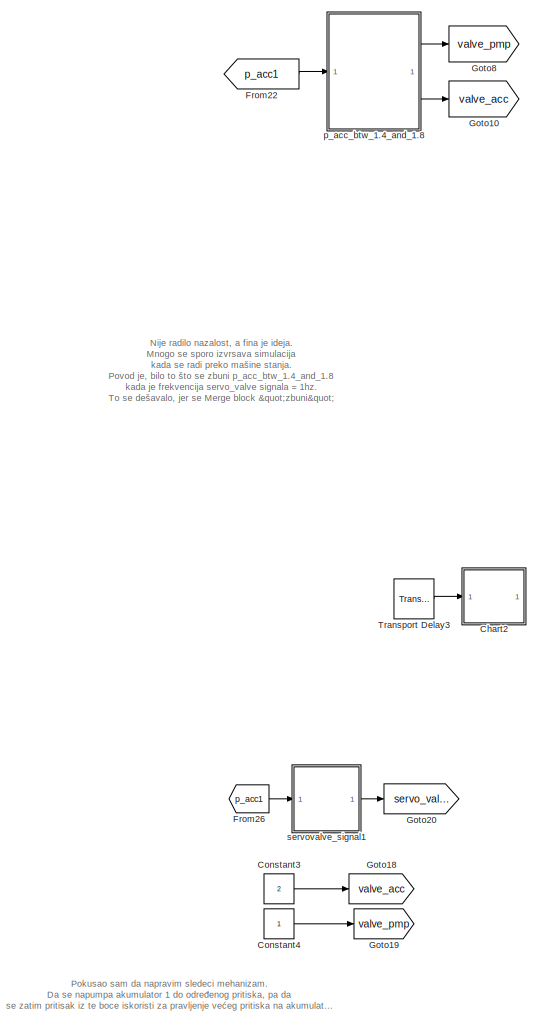
[diagram: root canvas - part 1/4, left side, full height]
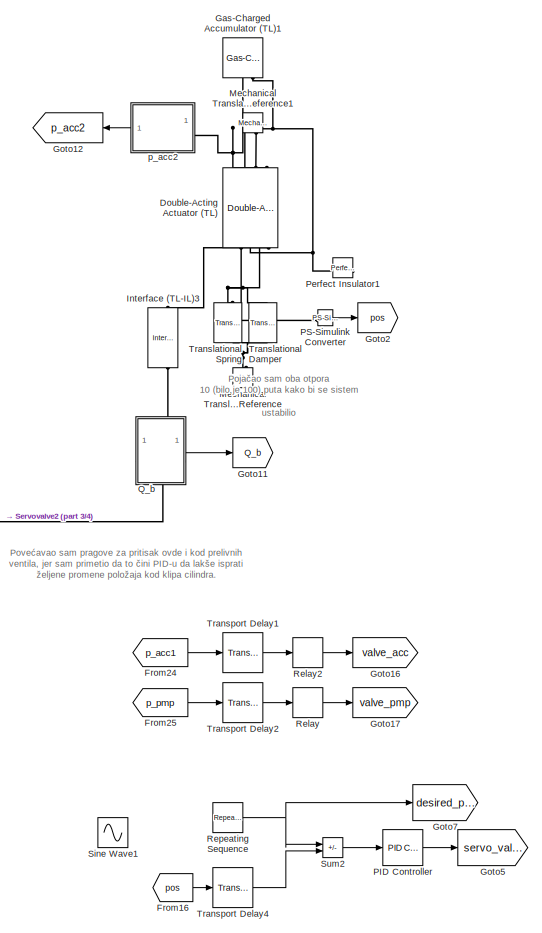
[diagram: root canvas - part 2/4, center side, full height]
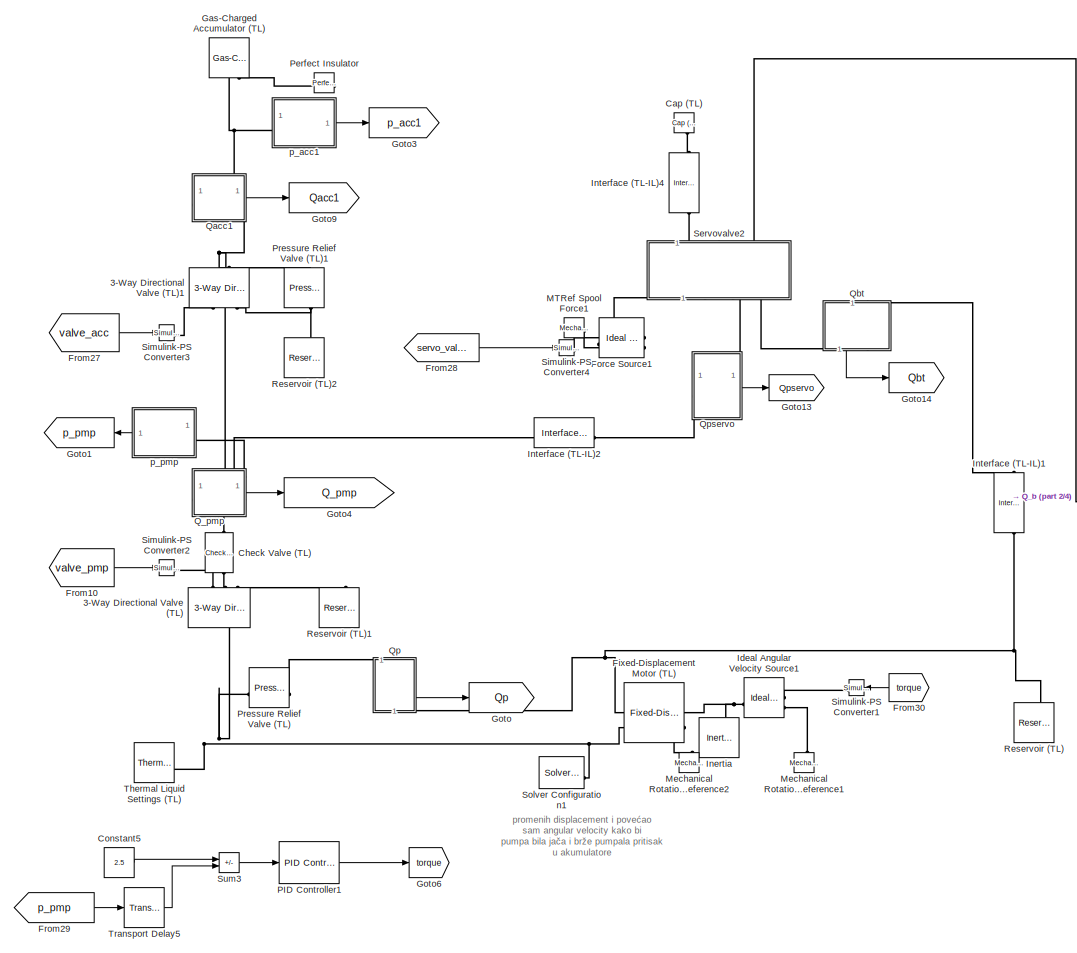
[diagram: root canvas - part 3/4, center side, full height]
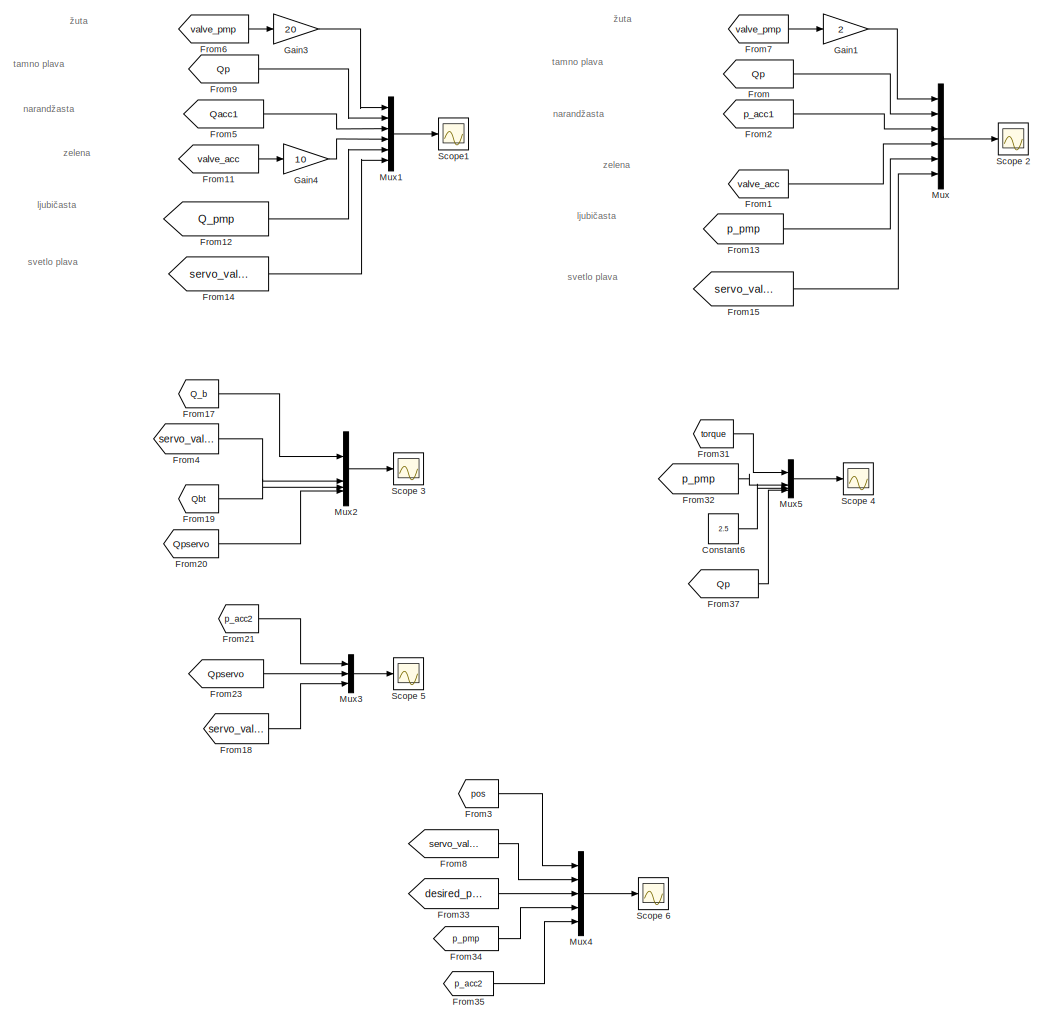
[diagram: root canvas - part 4/4, right side, full height]
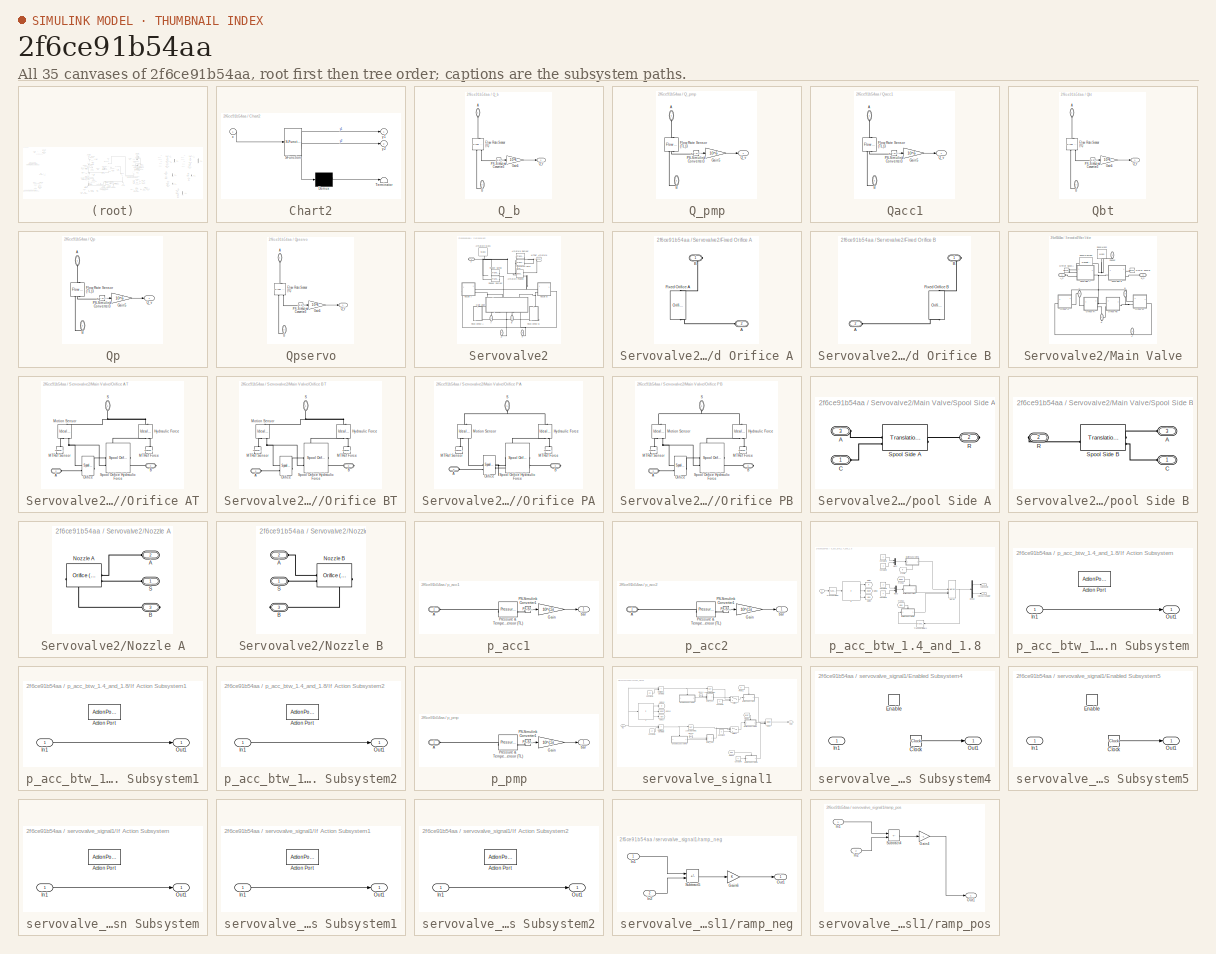
[diagram: thumbnail index - all 35 canvases of the model, root first then tree order]
MODEL slx_2f6ce91b54aa
KIND model
CONFIG AbsTol = auto
CONFIG EnableMultiTasking = off
CONFIG FixedStep = auto
CONFIG MaxStep = auto
CONFIG MinStep = auto
CONFIG RelTol = 1e-3
CONFIG SampleTimeConstraint = Unconstrained
CONFIG SolverName = VariableStepAuto
CONFIG StartTime = 0.0
CONFIG StopTime = 100
BLOCK [Reference] 3-Way Directional Valve (TL)  REF=SimscapeFluids_lib/Thermal Liquid/Valves & Orifices/Directional Control
Valves/3-Way Directional
Valve (TL)
  NameLocation = left
  SourceBlock = SimscapeFluids_lib/Thermal Liquid/Valves & Orifices/Directional Control\nValves/3-Way Directional\nValve (TL)
  SourceType = 3-Way Directional\nValve (TL)
BLOCK [Reference] 3-Way Directional Valve (TL)1  REF=SimscapeFluids_lib/Thermal Liquid/Valves & Orifices/Directional Control
Valves/3-Way Directional
Valve (TL)
  NameLocation = right
  SourceBlock = SimscapeFluids_lib/Thermal Liquid/Valves & Orifices/Directional Control\nValves/3-Way Directional\nValve (TL)
  SourceType = 3-Way Directional\nValve (TL)
BLOCK [Reference] Cap (TL)  REF=fl_lib/Thermal Liquid/Elements/Cap (TL)
  NameLocation = left
  SourceBlock = fl_lib/Thermal Liquid/Elements/Cap (TL)
  SourceType = Cap (TL)
BLOCK [SubSystem] Chart2
  Commented = on
  ErrorFcn = Stateflow.Translate.translate
  PermitHierarchicalResolution = ExplicitOnly
  SFBlockType = Chart
  TreatAsAtomicUnit = on
BLOCK [Demux] Chart2/ Demux 
  Outputs = 1
BLOCK [S-Function] Chart2/ SFunction 
  EnableBusSupport = on
  FunctionName = sf_sfun
  PortCounts = [1 3]
  SFcnIsStateOwnerBlock = off
  SFunctionDeploymentMode = off
  Tag = Stateflow S-Function 2
BLOCK [Terminator] Chart2/ Terminator 
BLOCK [Inport] Chart2/x
BLOCK [Outport] Chart2/y1
BLOCK [Outport] Chart2/y2
  Port = 2
BLOCK [Reference] Check Valve (TL)  REF=SimscapeFluids_lib/Thermal Liquid/Valves & Orifices/Directional Control
Valves/Check Valve (TL)
  NameLocation = right
  SourceBlock = SimscapeFluids_lib/Thermal Liquid/Valves & Orifices/Directional Control\nValves/Check Valve (TL)
  SourceType = Check Valve (TL)
BLOCK [Constant] Constant3
  Commented = on
  Value = 2
BLOCK [Constant] Constant4
  Commented = on
BLOCK [Constant] Constant5
  Value = 2.5
BLOCK [Constant] Constant6
  Value = 2.5
BLOCK [Reference] Double-Acting Actuator (TL)  REF=SimscapeFluids_lib/Thermal Liquid/Actuators/Double-Acting
Actuator (TL)
  NameLocation = left
  SourceBlock = SimscapeFluids_lib/Thermal Liquid/Actuators/Double-Acting\nActuator (TL)
  SourceType = Double-Acting\nActuator (TL)
BLOCK [Reference] Fixed-Displacement Motor (TL)  REF=SimscapeFluids_lib/Thermal Liquid/Pumps & Motors/Fixed-Displacement
Motor (TL)
  SourceBlock = SimscapeFluids_lib/Thermal Liquid/Pumps & Motors/Fixed-Displacement\nMotor (TL)
  SourceType = Fixed-Displacement\nMotor (TL)
BLOCK [Reference] Force Source1  REF=fl_lib/Mechanical/Mechanical Sources/Ideal Force Source
  SourceBlock = fl_lib/Mechanical/Mechanical Sources/Ideal Force Source
  SourceType = Ideal Force Source
  Tag = Factory Generic
BLOCK [From] From
  GotoTag = Qp
BLOCK [From] From1
  GotoTag = valve_acc
BLOCK [From] From10
  GotoTag = valve_pmp
BLOCK [From] From11
  GotoTag = valve_acc
BLOCK [From] From12
  GotoTag = Q_pmp
BLOCK [From] From13
  GotoTag = p_pmp
BLOCK [From] From14
  GotoTag = servo_valve
BLOCK [From] From15
  GotoTag = servo_valve
BLOCK [From] From16
  GotoTag = pos
BLOCK [From] From17
  GotoTag = Q_b
BLOCK [From] From18
  GotoTag = servo_valve
BLOCK [From] From19
  GotoTag = Qbt
BLOCK [From] From2
  GotoTag = p_acc1
BLOCK [From] From20
  GotoTag = Qpservo
BLOCK [From] From21
  GotoTag = p_acc2
BLOCK [From] From22
  Commented = on
  GotoTag = p_acc1
BLOCK [From] From23
  GotoTag = Qpservo
BLOCK [From] From24
  GotoTag = p_acc1
BLOCK [From] From25
  GotoTag = p_pmp
BLOCK [From] From26
  Commented = on
  GotoTag = p_acc1
BLOCK [From] From27
  GotoTag = valve_acc
BLOCK [From] From28
  GotoTag = servo_valve
BLOCK [From] From29
  GotoTag = p_pmp
BLOCK [From] From3
  GotoTag = pos
BLOCK [From] From30
  GotoTag = torque
  NameLocation = top
BLOCK [From] From31
  GotoTag = torque
BLOCK [From] From32
  GotoTag = p_pmp
BLOCK [From] From33
  GotoTag = desired_pos
BLOCK [From] From34
  GotoTag = p_pmp
BLOCK [From] From35
  GotoTag = p_acc2
BLOCK [From] From37
  GotoTag = Qp
BLOCK [From] From4
  GotoTag = servo_valve
BLOCK [From] From5
  GotoTag = Qacc1
BLOCK [From] From6
  GotoTag = valve_pmp
BLOCK [From] From7
  GotoTag = valve_pmp
BLOCK [From] From8
  GotoTag = servo_valve
BLOCK [From] From9
  GotoTag = Qp
BLOCK [Gain] Gain1
  Gain = 2
BLOCK [Gain] Gain3
  Gain = 20
BLOCK [Gain] Gain4
  Gain = 10
BLOCK [Reference] Gas-Charged Accumulator (TL)  REF=SimscapeFluids_lib/Thermal Liquid/Tanks & Accumulators/Gas-Charged
Accumulator (TL)
  NameLocation = right
  SourceBlock = SimscapeFluids_lib/Thermal Liquid/Tanks & Accumulators/Gas-Charged\nAccumulator (TL)
  SourceType = Gas-Charged\nAccumulator (TL)
BLOCK [Reference] Gas-Charged Accumulator (TL)1  REF=SimscapeFluids_lib/Thermal Liquid/Tanks & Accumulators/Gas-Charged
Accumulator (TL)
  NameLocation = right
  SourceBlock = SimscapeFluids_lib/Thermal Liquid/Tanks & Accumulators/Gas-Charged\nAccumulator (TL)
  SourceType = Gas-Charged\nAccumulator (TL)
BLOCK [Goto] Goto
  GotoTag = Qp
BLOCK [Goto] Goto1
  GotoTag = p_pmp
  NameLocation = top
BLOCK [Goto] Goto10
  Commented = on
  GotoTag = valve_acc
BLOCK [Goto] Goto11
  GotoTag = Q_b
BLOCK [Goto] Goto12
  GotoTag = p_acc2
  NameLocation = top
BLOCK [Goto] Goto13
  GotoTag = Qpservo
BLOCK [Goto] Goto14
  GotoTag = Qbt
BLOCK [Goto] Goto16
  GotoTag = valve_acc
BLOCK [Goto] Goto17
  GotoTag = valve_pmp
BLOCK [Goto] Goto18
  Commented = on
  GotoTag = valve_acc
BLOCK [Goto] Goto19
  Commented = on
  GotoTag = valve_pmp
BLOCK [Goto] Goto2
  GotoTag = pos
BLOCK [Goto] Goto20
  Commented = on
  GotoTag = servo_valve
BLOCK [Goto] Goto3
  GotoTag = p_acc1
BLOCK [Goto] Goto4
  GotoTag = Q_pmp
BLOCK [Goto] Goto5
  GotoTag = servo_valve
BLOCK [Goto] Goto6
  GotoTag = torque
BLOCK [Goto] Goto7
  GotoTag = desired_pos
BLOCK [Goto] Goto8
  Commented = on
  GotoTag = valve_pmp
BLOCK [Goto] Goto9
  GotoTag = Qacc1
BLOCK [Reference] Ideal Angular Velocity Source1  REF=fl_lib/Mechanical/Mechanical Sources/Ideal Angular
Velocity Source
  SourceBlock = fl_lib/Mechanical/Mechanical Sources/Ideal Angular\nVelocity Source
  SourceType = Ideal Angular\nVelocity Source
BLOCK [Reference] Inertia  REF=fl_lib/Mechanical/Rotational Elements/Inertia
  NameLocation = right
  SourceBlock = fl_lib/Mechanical/Rotational Elements/Inertia
  SourceType = Inertia
BLOCK [Reference] Interface (TL-IL)1  REF=SimscapeFluids_lib/Fluid Network
Interfaces/Interface (TL-IL)
  NameLocation = right
  SourceBlock = SimscapeFluids_lib/Fluid Network\nInterfaces/Interface (TL-IL)
  SourceType = Interface (TL-IL)
BLOCK [Reference] Interface (TL-IL)2  REF=SimscapeFluids_lib/Fluid Network
Interfaces/Interface (TL-IL)
  SourceBlock = SimscapeFluids_lib/Fluid Network\nInterfaces/Interface (TL-IL)
  SourceType = Interface (TL-IL)
BLOCK [Reference] Interface (TL-IL)3  REF=SimscapeFluids_lib/Fluid Network
Interfaces/Interface (TL-IL)
  NameLocation = left
  SourceBlock = SimscapeFluids_lib/Fluid Network\nInterfaces/Interface (TL-IL)
  SourceType = Interface (TL-IL)
BLOCK [Reference] Interface (TL-IL)4  REF=SimscapeFluids_lib/Fluid Network
Interfaces/Interface (TL-IL)
  NameLocation = left
  SourceBlock = SimscapeFluids_lib/Fluid Network\nInterfaces/Interface (TL-IL)
  SourceType = Interface (TL-IL)
BLOCK [Reference] MTRef Spool Force1  REF=fl_lib/Mechanical/Translational
Elements/Mechanical
Translational
Reference
  SourceBlock = fl_lib/Mechanical/Translational\nElements/Mechanical\nTranslational\nReference
  SourceType = Mechanical\nTranslational\nReference
  Tag = Factory Generic
BLOCK [Reference] Mechanical Rotational Reference1  REF=fl_lib/Mechanical/Rotational Elements/Mechanical
Rotational Reference
  NameLocation = right
  SourceBlock = fl_lib/Mechanical/Rotational Elements/Mechanical\nRotational Reference
  SourceType = Mechanical\nRotational Reference
BLOCK [Reference] Mechanical Rotational Reference2  REF=fl_lib/Mechanical/Rotational Elements/Mechanical
Rotational Reference
  NameLocation = right
  SourceBlock = fl_lib/Mechanical/Rotational Elements/Mechanical\nRotational Reference
  SourceType = Mechanical\nRotational Reference
BLOCK [Reference] Mechanical Translational Reference  REF=fl_lib/Mechanical/Translational
Elements/Mechanical
Translational
Reference
  NameLocation = right
  SourceBlock = fl_lib/Mechanical/Translational\nElements/Mechanical\nTranslational\nReference
  SourceType = Mechanical\nTranslational\nReference
BLOCK [Reference] Mechanical Translational Reference1  REF=fl_lib/Mechanical/Translational
Elements/Mechanical
Translational
Reference
  NameLocation = left
  SourceBlock = fl_lib/Mechanical/Translational\nElements/Mechanical\nTranslational\nReference
  SourceType = Mechanical\nTranslational\nReference
BLOCK [Mux] Mux
  DisplayOption = bar
  Inputs = 6
BLOCK [Mux] Mux1
  DisplayOption = bar
  Inputs = 6
BLOCK [Mux] Mux2
  DisplayOption = bar
BLOCK [Mux] Mux3
  DisplayOption = bar
  Inputs = 3
BLOCK [Mux] Mux4
  DisplayOption = bar
  Inputs = 5
BLOCK [Mux] Mux5
  DisplayOption = bar
BLOCK [Reference] PID Controller  REF=slpidlib/PID Controller
  LibrarySourceBlock = simulink/Continuous/PID Controller
  SourceBlock = slpidlib/PID Controller
  SourceType = PID 1dof
BLOCK [Reference] PID Controller1  REF=slpidlib/PID Controller
  LibrarySourceBlock = simulink/Continuous/PID Controller
  NameLocation = left
  SourceBlock = slpidlib/PID Controller
  SourceType = PID 1dof
BLOCK [Reference] PS-Simulink Converter  REF=nesl_utility/PS-Simulink
Converter
  SourceBlock = nesl_utility/PS-Simulink\nConverter
  SourceType = PS-Simulink\nConverter
BLOCK [Reference] Perfect Insulator  REF=fl_lib/Thermal/Thermal Elements/Perfect Insulator
  NameLocation = top
  SourceBlock = fl_lib/Thermal/Thermal Elements/Perfect Insulator
  SourceType = Perfect Insulator
BLOCK [Reference] Perfect Insulator1  REF=fl_lib/Thermal/Thermal Elements/Perfect Insulator
  NameLocation = top
  SourceBlock = fl_lib/Thermal/Thermal Elements/Perfect Insulator
  SourceType = Perfect Insulator
BLOCK [Reference] Pressure Relief Valve (TL)  REF=SimscapeFluids_lib/Thermal Liquid/Valves & Orifices/Pressure Control
Valves/Pressure Relief
Valve (TL)
  SourceBlock = SimscapeFluids_lib/Thermal Liquid/Valves & Orifices/Pressure Control\nValves/Pressure Relief\nValve (TL)
  SourceType = Pressure Relief\nValve (TL)
BLOCK [Reference] Pressure Relief Valve (TL)1  REF=SimscapeFluids_lib/Thermal Liquid/Valves & Orifices/Pressure Control
Valves/Pressure Relief
Valve (TL)
  NameLocation = left
  SourceBlock = SimscapeFluids_lib/Thermal Liquid/Valves & Orifices/Pressure Control\nValves/Pressure Relief\nValve (TL)
  SourceType = Pressure Relief\nValve (TL)
BLOCK [SubSystem] Q_b
  NameLocation = top
  PortSchema = {"entries":[{"content":{"sides":[{"content":{"connectorIds":["Out1"]},"type":"ConnectorPlacement.EquallySpacedRectSide","uuid":"6ff17596-5534-4320-afa6-0357b731a888"},{"content":{"side":"RIGHT"},"type":"ConnectorPlacement.EquallySpacedRectSide","uuid":"d0148cca-8559-4eae-a2d7-b1f870587941"},{"content":{"connectorIds":["LConn1"],"side":"TOP"},"type":"ConnectorPlacement.EquallySpacedRectSide","uuid"...<+377ch>  <repeated x3 — deduplicated; at blocks: Q_b, Qbt, Qpservo>
BLOCK [PMIOPort] Q_b/A
  NameLocation = left
  Side = Left
BLOCK [PMIOPort] Q_b/B
  NameLocation = right
  Port = 2
  Side = Right
BLOCK [Reference] Q_b/Flow Rate Sensor (IL)  REF=fl_lib/Isothermal Liquid/Sensors/Flow Rate Sensor
(IL)
  NameLocation = left
  SourceBlock = fl_lib/Isothermal Liquid/Sensors/Flow Rate Sensor\n(IL)
  SourceType = Flow Rate Sensor\n(IL)
BLOCK [Gain] Q_b/Gain5
  Gain = 10^6
BLOCK [Reference] Q_b/PS-Simulink Converter3  REF=nesl_utility/PS-Simulink
Converter
  SourceBlock = nesl_utility/PS-Simulink\nConverter
  SourceType = PS-Simulink\nConverter
BLOCK [Outport] Q_b/Q_v
BLOCK [SubSystem] Q_pmp
  NameLocation = top
  PortSchema = {"entries":[{"content":{"sides":[{"content":{"connectorIds":["Out1"]},"type":"ConnectorPlacement.EquallySpacedRectSide","uuid":"64eebb38-407b-4473-bb63-6fc68657ced3"},{"content":{"side":"RIGHT"},"type":"ConnectorPlacement.EquallySpacedRectSide","uuid":"fe4642c7-b9bb-4607-97dc-199c5570e8b5"},{"content":{"connectorIds":["LConn1"],"side":"TOP"},"type":"ConnectorPlacement.EquallySpacedRectSide","uuid"...<+377ch>
BLOCK [PMIOPort] Q_pmp/A
  NameLocation = left
  Side = Left
BLOCK [PMIOPort] Q_pmp/B
  NameLocation = left
  Port = 2
  Side = Right
BLOCK [Reference] Q_pmp/Flow Rate Sensor (TL)3  REF=fl_lib/Thermal Liquid/Sensors/Flow Rate Sensor
(TL)
  NameLocation = left
  SourceBlock = fl_lib/Thermal Liquid/Sensors/Flow Rate Sensor\n(TL)
  SourceType = Flow Rate Sensor\n(TL)
BLOCK [Gain] Q_pmp/Gain5
  Gain = 10^6
BLOCK [Reference] Q_pmp/PS-Simulink Converter3  REF=nesl_utility/PS-Simulink
Converter
  SourceBlock = nesl_utility/PS-Simulink\nConverter
  SourceType = PS-Simulink\nConverter
BLOCK [Outport] Q_pmp/Q_v
BLOCK [SubSystem] Qacc1
  PortSchema = {"entries":[{"content":{"sides":[{"content":{},"type":"ConnectorPlacement.EquallySpacedRectSide","uuid":"64eebb38-407b-4473-bb63-6fc68657ced3"},{"content":{"connectorIds":["Out1"],"side":"RIGHT"},"type":"ConnectorPlacement.EquallySpacedRectSide","uuid":"fe4642c7-b9bb-4607-97dc-199c5570e8b5"},{"content":{"connectorIds":["LConn1"],"side":"TOP"},"type":"ConnectorPlacement.EquallySpacedRectSide","uuid...<+378ch>
BLOCK [PMIOPort] Qacc1/A
  NameLocation = left
  Side = Left
BLOCK [PMIOPort] Qacc1/B
  NameLocation = left
  Port = 2
  Side = Right
BLOCK [Reference] Qacc1/Flow Rate Sensor (TL)3  REF=fl_lib/Thermal Liquid/Sensors/Flow Rate Sensor
(TL)
  NameLocation = left
  SourceBlock = fl_lib/Thermal Liquid/Sensors/Flow Rate Sensor\n(TL)
  SourceType = Flow Rate Sensor\n(TL)
BLOCK [Gain] Qacc1/Gain5
  Gain = 10^6
BLOCK [Reference] Qacc1/PS-Simulink Converter3  REF=nesl_utility/PS-Simulink
Converter
  SourceBlock = nesl_utility/PS-Simulink\nConverter
  SourceType = PS-Simulink\nConverter
BLOCK [Outport] Qacc1/Q_v
BLOCK [SubSystem] Qbt
  NameLocation = right
BLOCK [PMIOPort] Qbt/A
  NameLocation = left
  Side = Left
BLOCK [PMIOPort] Qbt/B
  NameLocation = right
  Port = 2
  Side = Right
BLOCK [Reference] Qbt/Flow Rate Sensor (IL)  REF=fl_lib/Isothermal Liquid/Sensors/Flow Rate Sensor
(IL)
  NameLocation = left
  SourceBlock = fl_lib/Isothermal Liquid/Sensors/Flow Rate Sensor\n(IL)
  SourceType = Flow Rate Sensor\n(IL)
BLOCK [Gain] Qbt/Gain5
  Gain = 10^6
BLOCK [Reference] Qbt/PS-Simulink Converter3  REF=nesl_utility/PS-Simulink
Converter
  SourceBlock = nesl_utility/PS-Simulink\nConverter
  SourceType = PS-Simulink\nConverter
BLOCK [Outport] Qbt/Q_v
BLOCK [SubSystem] Qp
  PortSchema = {"entries":[{"content":{"sides":[{"content":{},"type":"ConnectorPlacement.EquallySpacedRectSide","uuid":"64eebb38-407b-4473-bb63-6fc68657ced3"},{"content":{"side":"RIGHT"},"type":"ConnectorPlacement.EquallySpacedRectSide","uuid":"fe4642c7-b9bb-4607-97dc-199c5570e8b5"},{"content":{"connectorIds":["LConn1"],"side":"TOP"},"type":"ConnectorPlacement.EquallySpacedRectSide","uuid":"f27d07a7-79fc-4ae0-b6...<+361ch>
BLOCK [PMIOPort] Qp/A
  NameLocation = left
  Side = Left
BLOCK [PMIOPort] Qp/B
  NameLocation = left
  Port = 2
  Side = Right
BLOCK [Reference] Qp/Flow Rate Sensor (TL)3  REF=fl_lib/Thermal Liquid/Sensors/Flow Rate Sensor
(TL)
  NameLocation = left
  SourceBlock = fl_lib/Thermal Liquid/Sensors/Flow Rate Sensor\n(TL)
  SourceType = Flow Rate Sensor\n(TL)
BLOCK [Gain] Qp/Gain5
  Gain = 10^6
BLOCK [Reference] Qp/PS-Simulink Converter3  REF=nesl_utility/PS-Simulink
Converter
  SourceBlock = nesl_utility/PS-Simulink\nConverter
  SourceType = PS-Simulink\nConverter
BLOCK [Outport] Qp/Q_v
BLOCK [SubSystem] Qpservo
  NameLocation = top
BLOCK [PMIOPort] Qpservo/A
  NameLocation = left
  Side = Left
BLOCK [PMIOPort] Qpservo/B
  NameLocation = right
  Port = 2
  Side = Right
BLOCK [Reference] Qpservo/Flow Rate Sensor (IL)  REF=fl_lib/Isothermal Liquid/Sensors/Flow Rate Sensor
(IL)
  NameLocation = left
  SourceBlock = fl_lib/Isothermal Liquid/Sensors/Flow Rate Sensor\n(IL)
  SourceType = Flow Rate Sensor\n(IL)
BLOCK [Gain] Qpservo/Gain5
  Gain = 10^6
BLOCK [Reference] Qpservo/PS-Simulink Converter3  REF=nesl_utility/PS-Simulink
Converter
  SourceBlock = nesl_utility/PS-Simulink\nConverter
  SourceType = PS-Simulink\nConverter
BLOCK [Outport] Qpservo/Q_v
BLOCK [Relay] Relay
  OffOutputValue = 1
  OffSwitchValue = 2.5
  OnOutputValue = -1
  OnSwitchValue = 3
BLOCK [Relay] Relay2
  OffOutputValue = 1
  OffSwitchValue = 4.5
  OnOutputValue = -1
  OnSwitchValue = 5
BLOCK [Reference] Repeating Sequence  REF=simulink/Sources/Repeating
Sequence
  SourceBlock = simulink/Sources/Repeating\nSequence
  SourceType = Repeating table
BLOCK [Reference] Reservoir (TL)  REF=fl_lib/Thermal Liquid/Elements/Reservoir (TL)
  NameLocation = right
  SourceBlock = fl_lib/Thermal Liquid/Elements/Reservoir (TL)
  SourceType = Reservoir (TL)
BLOCK [Reference] Reservoir (TL)1  REF=fl_lib/Thermal Liquid/Elements/Reservoir (TL)
  NameLocation = right
  SourceBlock = fl_lib/Thermal Liquid/Elements/Reservoir (TL)
  SourceType = Reservoir (TL)
BLOCK [Reference] Reservoir (TL)2  REF=fl_lib/Thermal Liquid/Elements/Reservoir (TL)
  NameLocation = right
  SourceBlock = fl_lib/Thermal Liquid/Elements/Reservoir (TL)
  SourceType = Reservoir (TL)
BLOCK [Scope] Scope 2
  Floating = off
  NumInputPorts = 1
  ScopeSpecificationString = Simulink.scopes.TimeScopeBlockCfg('CurrentConfiguration', extmgr.ConfigurationSet(extmgr.Configuration('Core','General UI',true),extmgr.Configuration('Core','Source UI',true),extmgr.Configuration('Sources','WiredSimulink',true,'DataLoggingVariableName','ScopeData1'),extmgr.Configuration('Visuals','Time Domain',true,'SerializedDisplays',{struct('MinYLimReal','-0.07962','MaxYLimReal','2.59977','YLab...<+2301ch>
BLOCK [Scope] Scope 3
  Floating = off
  NumInputPorts = 1
  ScopeSpecificationString = Simulink.scopes.TimeScopeBlockCfg('CurrentConfiguration', extmgr.ConfigurationSet(extmgr.Configuration('Core','General UI',true),extmgr.Configuration('Core','Source UI',true),extmgr.Configuration('Sources','WiredSimulink',true,'DataLoggingVariableName','ScopeData3'),extmgr.Configuration('Visuals','Time Domain',true,'SerializedDisplays',{struct('MinYLimReal','-724.26802','MaxYLimReal','728.1586','Y...<+2000ch>
BLOCK [Scope] Scope 4
  Floating = off
  NumInputPorts = 1
  ScopeSpecificationString = Simulink.scopes.TimeScopeBlockCfg('CurrentConfiguration', extmgr.ConfigurationSet(extmgr.Configuration('Core','General UI',true),extmgr.Configuration('Core','Source UI',true),extmgr.Configuration('Sources','WiredSimulink',true,'DataLoggingVariableName','ScopeData1'),extmgr.Configuration('Visuals','Time Domain',true,'SerializedDisplays',{struct('MinYLimReal','1.37234','MaxYLimReal','2.61646','YLabe...<+1968ch>
BLOCK [Scope] Scope 5
  Floating = off
  NumInputPorts = 1
  ScopeSpecificationString = Simulink.scopes.TimeScopeBlockCfg('CurrentConfiguration', extmgr.ConfigurationSet(extmgr.Configuration('Core','General UI',true),extmgr.Configuration('Core','Source UI',true),extmgr.Configuration('Sources','WiredSimulink',true),extmgr.Configuration('Visuals','Time Domain',true,'SerializedDisplays',{struct('MinYLimReal','1.88461','MaxYLimReal','2.53866','YLabelReal','','MinYLimMag','1.88461','MaxYL...<+1787ch>
BLOCK [Scope] Scope 6
  Floating = off
  NumInputPorts = 1
  ScopeSpecificationString = Simulink.scopes.TimeScopeBlockCfg('CurrentConfiguration', extmgr.ConfigurationSet(extmgr.Configuration('Core','General UI',true),extmgr.Configuration('Core','Source UI',true),extmgr.Configuration('Sources','WiredSimulink',true,'DataLoggingVariableName','ScopeData1'),extmgr.Configuration('Visuals','Time Domain',true,'SerializedDisplays',{struct('MinYLimReal','-0.00453','MaxYLimReal','0.10398','YLab...<+2130ch>
BLOCK [Scope] Scope1
  Floating = off
  NumInputPorts = 1
  ScopeSpecificationString = Simulink.scopes.TimeScopeBlockCfg('CurrentConfiguration', extmgr.ConfigurationSet(extmgr.Configuration('Core','General UI',true),extmgr.Configuration('Core','Source UI',true),extmgr.Configuration('Sources','WiredSimulink',true,'DataLoggingVariableName','ScopeData2'),extmgr.Configuration('Visuals','Time Domain',true,'SerializedDisplays',{struct('MinYLimReal','-1009.03485','MaxYLimReal','1014.08335'...<+2406ch>
BLOCK [SubSystem] Servovalve2
  NameLocation = right
  Tag = PublishSubsystem
BLOCK [PMIOPort] Servovalve2/A
  NameLocation = left
  Side = Left
BLOCK [Reference] Servovalve2/Armature Damper  REF=fl_lib/Mechanical/Translational
Elements/Translational Damper
  NameLocation = top
  SourceBlock = fl_lib/Mechanical/Translational\nElements/Translational Damper
  SourceType = Translational Damper
  Tag = Factory Generic
BLOCK [Reference] Servovalve2/Armature Hard Stop  REF=fl_lib/Mechanical/Translational
Elements/Translational Hard
Stop
  SourceBlock = fl_lib/Mechanical/Translational\nElements/Translational Hard\nStop
  SourceType = Translational Hard\nStop
  Tag = Factory Generic
BLOCK [Reference] Servovalve2/Armature Mass  REF=fl_lib/Mechanical/Translational
Elements/Mass
  NameLocation = left
  SourceBlock = fl_lib/Mechanical/Translational\nElements/Mass
  SourceType = Mass
  Tag = Factory Generic
BLOCK [Reference] Servovalve2/Armature Position  REF=fl_lib/Mechanical/Mechanical Sensors/Ideal Translational
Motion Sensor
  SourceBlock = fl_lib/Mechanical/Mechanical Sensors/Ideal Translational\nMotion Sensor
  SourceType = Ideal Translational\nMotion Sensor
  Tag = Factory Generic
BLOCK [PMIOPort] Servovalve2/B
  NameLocation = left
  Port = 2
  Side = Left
BLOCK [PMIOPort] Servovalve2/F
  Port = 3
  Side = Right
BLOCK [SubSystem] Servovalve2/Fixed Orifice A
BLOCK [PMIOPort] Servovalve2/Fixed Orifice A/A
  Port = 2
  Side = Left
BLOCK [PMIOPort] Servovalve2/Fixed Orifice A/B
  Side = Right
BLOCK [Reference] Servovalve2/Fixed Orifice A/Fixed Orifice A  REF=SimscapeFluids_lib/Isothermal Liquid/Valves & Orifices/Orifices/Orifice (IL)
  NameLocation = left
  SourceBlock = SimscapeFluids_lib/Isothermal Liquid/Valves & Orifices/Orifices/Orifice (IL)
  SourceType = Orifice (IL)
  Tag = Factory Generic
BLOCK [SubSystem] Servovalve2/Fixed Orifice B
BLOCK [PMIOPort] Servovalve2/Fixed Orifice B/A
  Port = 2
  Side = Left
BLOCK [PMIOPort] Servovalve2/Fixed Orifice B/B
  Side = Right
BLOCK [Reference] Servovalve2/Fixed Orifice B/Fixed Orifice B  REF=SimscapeFluids_lib/Isothermal Liquid/Valves & Orifices/Orifices/Orifice (IL)
  NameLocation = right
  SourceBlock = SimscapeFluids_lib/Isothermal Liquid/Valves & Orifices/Orifices/Orifice (IL)
  SourceType = Orifice (IL)
  Tag = Factory Generic
BLOCK [Reference] Servovalve2/Flapper Damper  REF=fl_lib/Mechanical/Translational
Elements/Translational Damper
  SourceBlock = fl_lib/Mechanical/Translational\nElements/Translational Damper
  SourceType = Translational Damper
  Tag = Factory Generic
BLOCK [Reference] Servovalve2/Flapper Spring  REF=fl_lib/Mechanical/Translational
Elements/Translational Spring
  NameLocation = top
  SourceBlock = fl_lib/Mechanical/Translational\nElements/Translational Spring
  SourceType = Translational Spring
  Tag = Factory Generic
BLOCK [Reference] Servovalve2/MTRef Armature  REF=fl_lib/Mechanical/Translational
Elements/Mechanical
Translational
Reference
  NameLocation = top
  SourceBlock = fl_lib/Mechanical/Translational\nElements/Mechanical\nTranslational\nReference
  SourceType = Mechanical\nTranslational\nReference
  Tag = Factory Generic
BLOCK [SubSystem] Servovalve2/Main Valve
  NameLocation = left
  Tag = PublishSubsystem
BLOCK [PMIOPort] Servovalve2/Main Valve/A
  NameLocation = right
  Port = 4
  Side = Right
BLOCK [PMIOPort] Servovalve2/Main Valve/A_S
  Side = Left
BLOCK [PMIOPort] Servovalve2/Main Valve/B
  NameLocation = left
  Port = 6
  Side = Right
BLOCK [PMIOPort] Servovalve2/Main Valve/B_S
  Port = 3
  Side = Left
BLOCK [PMIOPort] Servovalve2/Main Valve/Flapper
  NameLocation = right
  Port = 2
  Side = Left
BLOCK [Reference] Servovalve2/Main Valve/MTRef Spool A  REF=fl_lib/Mechanical/Translational
Elements/Mechanical
Translational
Reference
  NameLocation = top
  SourceBlock = fl_lib/Mechanical/Translational\nElements/Mechanical\nTranslational\nReference
  SourceType = Mechanical\nTranslational\nReference
  Tag = Factory Generic
BLOCK [Reference] Servovalve2/Main Valve/MTRef Spool B  REF=fl_lib/Mechanical/Translational
Elements/Mechanical
Translational
Reference
  NameLocation = top
  SourceBlock = fl_lib/Mechanical/Translational\nElements/Mechanical\nTranslational\nReference
  SourceType = Mechanical\nTranslational\nReference
  Tag = Factory Generic
BLOCK [SubSystem] Servovalve2/Main Valve/Orifice AT
  Tag = PublishSubsystem
BLOCK [PMIOPort] Servovalve2/Main Valve/Orifice AT/A
  Port = 2
  Side = Left
BLOCK [PMIOPort] Servovalve2/Main Valve/Orifice AT/B
  Port = 3
  Side = Right
BLOCK [Reference] Servovalve2/Main Valve/Orifice AT/Hydraulic Force  REF=fl_lib/Mechanical/Mechanical Sources/Ideal Force Source
  NameLocation = left
  SourceBlock = fl_lib/Mechanical/Mechanical Sources/Ideal Force Source
  SourceType = Ideal Force Source
  Tag = Factory Generic
BLOCK [Reference] Servovalve2/Main Valve/Orifice AT/MTRef Force  REF=fl_lib/Mechanical/Translational
Elements/Mechanical
Translational
Reference
  NameLocation = right
  SourceBlock = fl_lib/Mechanical/Translational\nElements/Mechanical\nTranslational\nReference
  SourceType = Mechanical\nTranslational\nReference
  Tag = Factory Generic
BLOCK [Reference] Servovalve2/Main Valve/Orifice AT/MTRef Sensor  REF=fl_lib/Mechanical/Translational
Elements/Mechanical
Translational
Reference
  NameLocation = left
  SourceBlock = fl_lib/Mechanical/Translational\nElements/Mechanical\nTranslational\nReference
  SourceType = Mechanical\nTranslational\nReference
  Tag = Factory Generic
BLOCK [Reference] Servovalve2/Main Valve/Orifice AT/Motion Sensor  REF=fl_lib/Mechanical/Mechanical Sensors/Ideal Translational
Motion Sensor
  NameLocation = right
  SourceBlock = fl_lib/Mechanical/Mechanical Sensors/Ideal Translational\nMotion Sensor
  SourceType = Ideal Translational\nMotion Sensor
  Tag = Factory Generic
BLOCK [Reference] Servovalve2/Main Valve/Orifice AT/Orifice  REF=SimscapeFluids_lib/Isothermal Liquid/Valves & Orifices/Orifices/Spool Orifice (IL)
  SourceBlock = SimscapeFluids_lib/Isothermal Liquid/Valves & Orifices/Orifices/Spool Orifice (IL)
  SourceType = Spool Orifice (IL)
  Tag = Factory Generic
BLOCK [PMIOPort] Servovalve2/Main Valve/Orifice AT/S
  NameLocation = left
  Side = Left
BLOCK [Reference] Servovalve2/Main Valve/Orifice AT/Spool Orifice Hydraulic Force  REF=SimscapeFluids_lib/Isothermal Liquid/Valves & Orifices/Valve Actuators &
Forces/Spool Orifice Flow
Force (IL)
  LibrarySourceBlock = SimscapeFluids_lib/Isothermal Liquid/Valves & Orifices/Valve Actuators & Forces/Spool Orifice Flow Force (IL)
  SourceBlock = SimscapeFluids_lib/Isothermal Liquid/Valves & Orifices/Valve Actuators &\nForces/Spool Orifice Flow\nForce (IL)
  SourceType = Spool Orifice Flow\nForce (IL)
BLOCK [SubSystem] Servovalve2/Main Valve/Orifice BT
BLOCK [PMIOPort] Servovalve2/Main Valve/Orifice BT/A
  Port = 2
  Side = Left
BLOCK [PMIOPort] Servovalve2/Main Valve/Orifice BT/B
  Port = 3
  Side = Right
BLOCK [Reference] Servovalve2/Main Valve/Orifice BT/Hydraulic Force  REF=fl_lib/Mechanical/Mechanical Sources/Ideal Force Source
  NameLocation = right
  SourceBlock = fl_lib/Mechanical/Mechanical Sources/Ideal Force Source
  SourceType = Ideal Force Source
  Tag = Factory Generic
BLOCK [Reference] Servovalve2/Main Valve/Orifice BT/MTRef Force  REF=fl_lib/Mechanical/Translational
Elements/Mechanical
Translational
Reference
  NameLocation = right
  SourceBlock = fl_lib/Mechanical/Translational\nElements/Mechanical\nTranslational\nReference
  SourceType = Mechanical\nTranslational\nReference
  Tag = Factory Generic
BLOCK [Reference] Servovalve2/Main Valve/Orifice BT/MTRef Sensor  REF=fl_lib/Mechanical/Translational
Elements/Mechanical
Translational
Reference
  NameLocation = left
  SourceBlock = fl_lib/Mechanical/Translational\nElements/Mechanical\nTranslational\nReference
  SourceType = Mechanical\nTranslational\nReference
  Tag = Factory Generic
BLOCK [Reference] Servovalve2/Main Valve/Orifice BT/Motion Sensor  REF=fl_lib/Mechanical/Mechanical Sensors/Ideal Translational
Motion Sensor
  NameLocation = right
  SourceBlock = fl_lib/Mechanical/Mechanical Sensors/Ideal Translational\nMotion Sensor
  SourceType = Ideal Translational\nMotion Sensor
  Tag = Factory Generic
BLOCK [Reference] Servovalve2/Main Valve/Orifice BT/Orifice  REF=SimscapeFluids_lib/Isothermal Liquid/Valves & Orifices/Orifices/Spool Orifice (IL)
  SourceBlock = SimscapeFluids_lib/Isothermal Liquid/Valves & Orifices/Orifices/Spool Orifice (IL)
  SourceType = Spool Orifice (IL)
  Tag = Factory Generic
BLOCK [PMIOPort] Servovalve2/Main Valve/Orifice BT/S
  NameLocation = left
  Side = Left
BLOCK [Reference] Servovalve2/Main Valve/Orifice BT/Spool Orifice Hydraulic Force  REF=SimscapeFluids_lib/Isothermal Liquid/Valves & Orifices/Valve Actuators &
Forces/Spool Orifice Flow
Force (IL)
  LibrarySourceBlock = SimscapeFluids_lib/Isothermal Liquid/Valves & Orifices/Valve Actuators & Forces/Spool Orifice Flow Force (IL)
  SourceBlock = SimscapeFluids_lib/Isothermal Liquid/Valves & Orifices/Valve Actuators &\nForces/Spool Orifice Flow\nForce (IL)
  SourceType = Spool Orifice Flow\nForce (IL)
BLOCK [SubSystem] Servovalve2/Main Valve/Orifice PA
BLOCK [PMIOPort] Servovalve2/Main Valve/Orifice PA/A
  Port = 2
  Side = Left
BLOCK [PMIOPort] Servovalve2/Main Valve/Orifice PA/B
  Port = 3
  Side = Right
BLOCK [Reference] Servovalve2/Main Valve/Orifice PA/Hydraulic Force  REF=fl_lib/Mechanical/Mechanical Sources/Ideal Force Source
  NameLocation = left
  SourceBlock = fl_lib/Mechanical/Mechanical Sources/Ideal Force Source
  SourceType = Ideal Force Source
  Tag = Factory Generic
BLOCK [Reference] Servovalve2/Main Valve/Orifice PA/MTRef Force  REF=fl_lib/Mechanical/Translational
Elements/Mechanical
Translational
Reference
  NameLocation = right
  SourceBlock = fl_lib/Mechanical/Translational\nElements/Mechanical\nTranslational\nReference
  SourceType = Mechanical\nTranslational\nReference
  Tag = Factory Generic
BLOCK [Reference] Servovalve2/Main Valve/Orifice PA/MTRef Sensor  REF=fl_lib/Mechanical/Translational
Elements/Mechanical
Translational
Reference
  NameLocation = left
  SourceBlock = fl_lib/Mechanical/Translational\nElements/Mechanical\nTranslational\nReference
  SourceType = Mechanical\nTranslational\nReference
  Tag = Factory Generic
BLOCK [Reference] Servovalve2/Main Valve/Orifice PA/Motion Sensor  REF=fl_lib/Mechanical/Mechanical Sensors/Ideal Translational
Motion Sensor
  NameLocation = right
  SourceBlock = fl_lib/Mechanical/Mechanical Sensors/Ideal Translational\nMotion Sensor
  SourceType = Ideal Translational\nMotion Sensor
  Tag = Factory Generic
BLOCK [Reference] Servovalve2/Main Valve/Orifice PA/Orifice  REF=SimscapeFluids_lib/Isothermal Liquid/Valves & Orifices/Orifices/Spool Orifice (IL)
  SourceBlock = SimscapeFluids_lib/Isothermal Liquid/Valves & Orifices/Orifices/Spool Orifice (IL)
  SourceType = Spool Orifice (IL)
  Tag = Factory Generic
BLOCK [PMIOPort] Servovalve2/Main Valve/Orifice PA/S
  NameLocation = left
  Side = Left
BLOCK [Reference] Servovalve2/Main Valve/Orifice PA/Spool Orifice Hydraulic Force  REF=SimscapeFluids_lib/Isothermal Liquid/Valves & Orifices/Valve Actuators &
Forces/Spool Orifice Flow
Force (IL)
  LibrarySourceBlock = SimscapeFluids_lib/Isothermal Liquid/Valves & Orifices/Valve Actuators & Forces/Spool Orifice Flow Force (IL)
  SourceBlock = SimscapeFluids_lib/Isothermal Liquid/Valves & Orifices/Valve Actuators &\nForces/Spool Orifice Flow\nForce (IL)
  SourceType = Spool Orifice Flow\nForce (IL)
BLOCK [SubSystem] Servovalve2/Main Valve/Orifice PB
BLOCK [PMIOPort] Servovalve2/Main Valve/Orifice PB/A
  Port = 2
  Side = Left
BLOCK [PMIOPort] Servovalve2/Main Valve/Orifice PB/B
  Port = 3
  Side = Right
BLOCK [Reference] Servovalve2/Main Valve/Orifice PB/Hydraulic Force  REF=fl_lib/Mechanical/Mechanical Sources/Ideal Force Source
  NameLocation = left
  SourceBlock = fl_lib/Mechanical/Mechanical Sources/Ideal Force Source
  SourceType = Ideal Force Source
  Tag = Factory Generic
BLOCK [Reference] Servovalve2/Main Valve/Orifice PB/MTRef Force  REF=fl_lib/Mechanical/Translational
Elements/Mechanical
Translational
Reference
  NameLocation = right
  SourceBlock = fl_lib/Mechanical/Translational\nElements/Mechanical\nTranslational\nReference
  SourceType = Mechanical\nTranslational\nReference
  Tag = Factory Generic
BLOCK [Reference] Servovalve2/Main Valve/Orifice PB/MTRef Sensor  REF=fl_lib/Mechanical/Translational
Elements/Mechanical
Translational
Reference
  NameLocation = left
  SourceBlock = fl_lib/Mechanical/Translational\nElements/Mechanical\nTranslational\nReference
  SourceType = Mechanical\nTranslational\nReference
  Tag = Factory Generic
BLOCK [Reference] Servovalve2/Main Valve/Orifice PB/Motion Sensor  REF=fl_lib/Mechanical/Mechanical Sensors/Ideal Translational
Motion Sensor
  NameLocation = right
  SourceBlock = fl_lib/Mechanical/Mechanical Sensors/Ideal Translational\nMotion Sensor
  SourceType = Ideal Translational\nMotion Sensor
  Tag = Factory Generic
BLOCK [Reference] Servovalve2/Main Valve/Orifice PB/Orifice  REF=SimscapeFluids_lib/Isothermal Liquid/Valves & Orifices/Orifices/Spool Orifice (IL)
  SourceBlock = SimscapeFluids_lib/Isothermal Liquid/Valves & Orifices/Orifices/Spool Orifice (IL)
  SourceType = Spool Orifice (IL)
  Tag = Factory Generic
BLOCK [PMIOPort] Servovalve2/Main Valve/Orifice PB/S
  NameLocation = left
  Side = Left
BLOCK [Reference] Servovalve2/Main Valve/Orifice PB/Spool Orifice Hydraulic Force  REF=SimscapeFluids_lib/Isothermal Liquid/Valves & Orifices/Valve Actuators &
Forces/Spool Orifice Flow
Force (IL)
  LibrarySourceBlock = SimscapeFluids_lib/Isothermal Liquid/Valves & Orifices/Valve Actuators & Forces/Spool Orifice Flow Force (IL)
  SourceBlock = SimscapeFluids_lib/Isothermal Liquid/Valves & Orifices/Valve Actuators &\nForces/Spool Orifice Flow\nForce (IL)
  SourceType = Spool Orifice Flow\nForce (IL)
BLOCK [PMIOPort] Servovalve2/Main Valve/P
  NameLocation = right
  Port = 5
  Side = Right
BLOCK [Reference] Servovalve2/Main Valve/Spool Damper  REF=fl_lib/Mechanical/Translational
Elements/Translational Damper
  NameLocation = top
  SourceBlock = fl_lib/Mechanical/Translational\nElements/Translational Damper
  SourceType = Translational Damper
  Tag = Factory Generic
BLOCK [Reference] Servovalve2/Main Valve/Spool Mass  REF=fl_lib/Mechanical/Translational
Elements/Mass
  NameLocation = left
  SourceBlock = fl_lib/Mechanical/Translational\nElements/Mass
  SourceType = Mass
  Tag = Factory Generic
BLOCK [SubSystem] Servovalve2/Main Valve/Spool Side A
BLOCK [PMIOPort] Servovalve2/Main Valve/Spool Side A/A
  Port = 3
  Side = Left
BLOCK [PMIOPort] Servovalve2/Main Valve/Spool Side A/C
  Side = Left
BLOCK [PMIOPort] Servovalve2/Main Valve/Spool Side A/R
  Port = 2
  Side = Right
BLOCK [Reference] Servovalve2/Main Valve/Spool Side A/Spool Side A  REF=fl_lib/Isothermal Liquid/Elements/Translational
Mechanical Converter
(IL)
  LibrarySourceBlock = fl_lib/Isothermal Liquid/Elements/Translational Mechanical Converter (IL)
  SourceBlock = fl_lib/Isothermal Liquid/Elements/Translational\nMechanical Converter\n(IL)
  SourceType = Translational\nMechanical Converter\n(IL)
  Tag = Factory Generic
BLOCK [SubSystem] Servovalve2/Main Valve/Spool Side B
BLOCK [PMIOPort] Servovalve2/Main Valve/Spool Side B/A
  Port = 3
  Side = Left
BLOCK [PMIOPort] Servovalve2/Main Valve/Spool Side B/C
  Side = Left
BLOCK [PMIOPort] Servovalve2/Main Valve/Spool Side B/R
  Port = 2
  Side = Right
BLOCK [Reference] Servovalve2/Main Valve/Spool Side B/Spool Side B  REF=fl_lib/Isothermal Liquid/Elements/Translational
Mechanical Converter
(IL)
  LibrarySourceBlock = fl_lib/Isothermal Liquid/Elements/Translational Mechanical Converter (IL)
  SourceBlock = fl_lib/Isothermal Liquid/Elements/Translational\nMechanical Converter\n(IL)
  SourceType = Translational\nMechanical Converter\n(IL)
  Tag = Factory Generic
BLOCK [PMIOPort] Servovalve2/Main Valve/T
  NameLocation = left
  Port = 7
  Side = Right
BLOCK [SubSystem] Servovalve2/Nozzle A
BLOCK [PMIOPort] Servovalve2/Nozzle A/A
  Port = 2
  Side = Left
BLOCK [PMIOPort] Servovalve2/Nozzle A/B
  Port = 3
  Side = Right
BLOCK [Reference] Servovalve2/Nozzle A/Nozzle A  REF=SimscapeFluids_lib/Isothermal Liquid/Valves & Orifices/Orifices/Orifice (IL)
  NameLocation = top
  SourceBlock = SimscapeFluids_lib/Isothermal Liquid/Valves & Orifices/Orifices/Orifice (IL)
  SourceType = Orifice (IL)
  Tag = Factory Generic
BLOCK [PMIOPort] Servovalve2/Nozzle A/S
  Side = Left
BLOCK [SubSystem] Servovalve2/Nozzle B
BLOCK [PMIOPort] Servovalve2/Nozzle B/A
  Port = 2
  Side = Left
BLOCK [PMIOPort] Servovalve2/Nozzle B/B
  Port = 3
  Side = Right
BLOCK [Reference] Servovalve2/Nozzle B/Nozzle B  REF=SimscapeFluids_lib/Isothermal Liquid/Valves & Orifices/Orifices/Orifice (IL)
  NameLocation = top
  SourceBlock = SimscapeFluids_lib/Isothermal Liquid/Valves & Orifices/Orifices/Orifice (IL)
  SourceType = Orifice (IL)
  Tag = Factory Generic
BLOCK [PMIOPort] Servovalve2/Nozzle B/S
  Side = Left
BLOCK [PMIOPort] Servovalve2/P
  NameLocation = right
  Port = 4
  Side = Right
BLOCK [PMIOPort] Servovalve2/T
  NameLocation = right
  Port = 5
  Side = Right
BLOCK [Reference] Simulink-PS Converter1  REF=nesl_utility/Simulink-PS
Converter
  NameLocation = top
  SourceBlock = nesl_utility/Simulink-PS\nConverter
  SourceType = Simulink-PS\nConverter
BLOCK [Reference] Simulink-PS Converter2  REF=nesl_utility/Simulink-PS
Converter
  SourceBlock = nesl_utility/Simulink-PS\nConverter
  SourceType = Simulink-PS\nConverter
BLOCK [Reference] Simulink-PS Converter3  REF=nesl_utility/Simulink-PS
Converter
  SourceBlock = nesl_utility/Simulink-PS\nConverter
  SourceType = Simulink-PS\nConverter
BLOCK [Reference] Simulink-PS Converter4  REF=nesl_utility/Simulink-PS
Converter
  SourceBlock = nesl_utility/Simulink-PS\nConverter
  SourceType = Simulink-PS\nConverter
BLOCK [Sin] Sine Wave1
  Amplitude = 0.05
  Bias = 0.05
  Commented = on
  Frequency = 0.5
  Phase = -pi/2
  SampleTime = 0
BLOCK [Reference] Solver Configuration1  REF=nesl_utility/Solver
Configuration
  SourceBlock = nesl_utility/Solver\nConfiguration
  SourceType = Solver\nConfiguration
BLOCK [Sum] Sum2
  IconShape = rectangular
  Inputs = |+-
BLOCK [Sum] Sum3
  IconShape = rectangular
  Inputs = |+-
BLOCK [Reference] Thermal Liquid Settings (TL)  REF=fl_lib/Thermal Liquid/Utilities/Thermal Liquid
Settings (TL)
  SourceBlock = fl_lib/Thermal Liquid/Utilities/Thermal Liquid\nSettings (TL)
  SourceType = Thermal Liquid\nSettings (TL)
BLOCK [Reference] Translational Damper  REF=fl_lib/Mechanical/Translational
Elements/Translational Damper
  NameLocation = left
  SourceBlock = fl_lib/Mechanical/Translational\nElements/Translational Damper
  SourceType = Translational Damper
BLOCK [Reference] Translational Spring  REF=fl_lib/Mechanical/Translational
Elements/Translational Spring
  NameLocation = left
  SourceBlock = fl_lib/Mechanical/Translational\nElements/Translational Spring
  SourceType = Translational Spring
BLOCK [TransportDelay] Transport Delay1
  BufferSize = 4096
  DelayTime = 0.001
BLOCK [TransportDelay] Transport Delay2
  BufferSize = 4096
  DelayTime = 0.001
BLOCK [TransportDelay] Transport Delay3
  Commented = on
  DelayTime = 0.001
BLOCK [TransportDelay] Transport Delay4
  BufferSize = 4096
  DelayTime = 0.001
BLOCK [TransportDelay] Transport Delay5
  BufferSize = 4096
  DelayTime = 0.001
BLOCK [SubSystem] p_acc1
BLOCK [PMIOPort] p_acc1/A
  Side = Left
BLOCK [Gain] p_acc1/Gain
  Gain = 10^(-5)
BLOCK [Reference] p_acc1/PS-Simulink Converter1  REF=nesl_utility/PS-Simulink
Converter
  SourceBlock = nesl_utility/PS-Simulink\nConverter
  SourceType = PS-Simulink\nConverter
BLOCK [Reference] p_acc1/Pressure & Temperature Sensor (TL)  REF=fl_lib/Thermal Liquid/Sensors/Pressure &
Temperature Sensor
(TL)
  SourceBlock = fl_lib/Thermal Liquid/Sensors/Pressure &\nTemperature Sensor\n(TL)
  SourceType = Pressure &\nTemperature Sensor\n(TL)
BLOCK [Outport] p_acc1/bar
BLOCK [SubSystem] p_acc2
  NameLocation = top
BLOCK [PMIOPort] p_acc2/A
  Side = Left
BLOCK [Gain] p_acc2/Gain
  Gain = 10^(-5)
BLOCK [Reference] p_acc2/PS-Simulink Converter1  REF=nesl_utility/PS-Simulink
Converter
  SourceBlock = nesl_utility/PS-Simulink\nConverter
  SourceType = PS-Simulink\nConverter
BLOCK [Reference] p_acc2/Pressure & Temperature Sensor (TL)  REF=fl_lib/Thermal Liquid/Sensors/Pressure &
Temperature Sensor
(TL)
  SourceBlock = fl_lib/Thermal Liquid/Sensors/Pressure &\nTemperature Sensor\n(TL)
  SourceType = Pressure &\nTemperature Sensor\n(TL)
BLOCK [Outport] p_acc2/bar
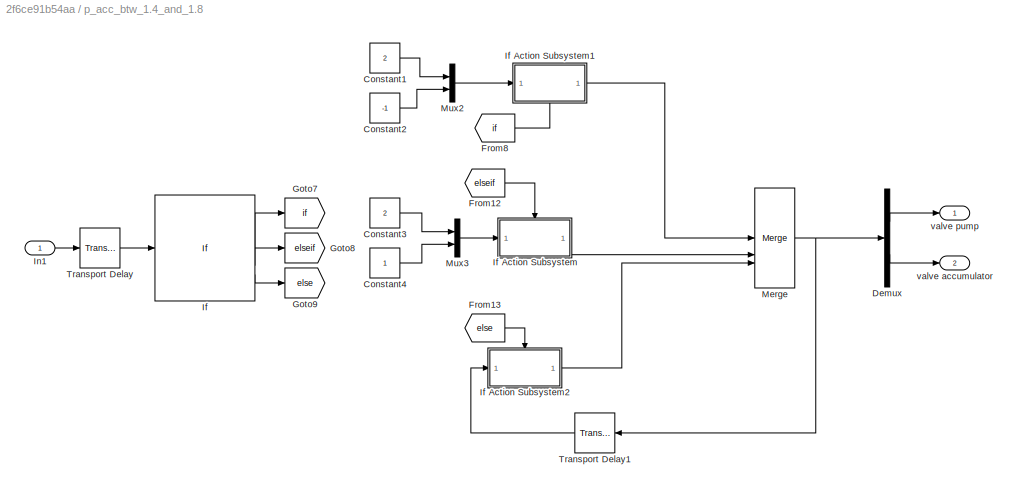
BLOCK [SubSystem] p_acc_btw_1.4_and_1.8
  Commented = on
BLOCK [Constant] p_acc_btw_1.4_and_1.8/Constant1
  Value = 2
BLOCK [Constant] p_acc_btw_1.4_and_1.8/Constant2
  Value = -1
BLOCK [Constant] p_acc_btw_1.4_and_1.8/Constant3
  Value = 2
BLOCK [Constant] p_acc_btw_1.4_and_1.8/Constant4
BLOCK [Demux] p_acc_btw_1.4_and_1.8/Demux
  Outputs = 2
BLOCK [From] p_acc_btw_1.4_and_1.8/From12
  GotoTag = elseif
BLOCK [From] p_acc_btw_1.4_and_1.8/From13
  GotoTag = else
BLOCK [From] p_acc_btw_1.4_and_1.8/From8
  GotoTag = if
BLOCK [Goto] p_acc_btw_1.4_and_1.8/Goto7
  GotoTag = if
BLOCK [Goto] p_acc_btw_1.4_and_1.8/Goto8
  GotoTag = elseif
BLOCK [Goto] p_acc_btw_1.4_and_1.8/Goto9
  GotoTag = else
BLOCK [If] p_acc_btw_1.4_and_1.8/If
  ElseIfExpressions = u1 < 1.4
  IfExpression = u1 > 1.8
BLOCK [SubSystem] p_acc_btw_1.4_and_1.8/If Action Subsystem
  TreatAsAtomicUnit = on
BLOCK [ActionPort] p_acc_btw_1.4_and_1.8/If Action Subsystem/Action Port
  ActionPortLabel = elseif(u1 < 1.4)
BLOCK [Inport] p_acc_btw_1.4_and_1.8/If Action Subsystem/In1
BLOCK [Outport] p_acc_btw_1.4_and_1.8/If Action Subsystem/Out1
  InitialOutput = [0 0]
BLOCK [SubSystem] p_acc_btw_1.4_and_1.8/If Action Subsystem1
  NameLocation = top
  TreatAsAtomicUnit = on
BLOCK [ActionPort] p_acc_btw_1.4_and_1.8/If Action Subsystem1/Action Port
  ActionPortLabel = if(u1 > 1.8)
BLOCK [Inport] p_acc_btw_1.4_and_1.8/If Action Subsystem1/In1
BLOCK [Outport] p_acc_btw_1.4_and_1.8/If Action Subsystem1/Out1
BLOCK [SubSystem] p_acc_btw_1.4_and_1.8/If Action Subsystem2
  TreatAsAtomicUnit = on
BLOCK [ActionPort] p_acc_btw_1.4_and_1.8/If Action Subsystem2/Action Port
  ActionPortLabel = else
BLOCK [Inport] p_acc_btw_1.4_and_1.8/If Action Subsystem2/In1
BLOCK [Outport] p_acc_btw_1.4_and_1.8/If Action Subsystem2/Out1
  InitialOutput = [0 0]
BLOCK [Inport] p_acc_btw_1.4_and_1.8/In1
BLOCK [Merge] p_acc_btw_1.4_and_1.8/Merge
  Inputs = 3
BLOCK [Mux] p_acc_btw_1.4_and_1.8/Mux2
  DisplayOption = bar
  Inputs = 2
BLOCK [Mux] p_acc_btw_1.4_and_1.8/Mux3
  DisplayOption = bar
  Inputs = 2
BLOCK [TransportDelay] p_acc_btw_1.4_and_1.8/Transport Delay
  DelayTime = 0.001
BLOCK [TransportDelay] p_acc_btw_1.4_and_1.8/Transport Delay1
  DelayTime = 0.001
  NameLocation = top
BLOCK [Outport] p_acc_btw_1.4_and_1.8/valve accumulator
  Port = 2
BLOCK [Outport] p_acc_btw_1.4_and_1.8/valve pump
BLOCK [SubSystem] p_pmp
  NameLocation = top
BLOCK [PMIOPort] p_pmp/A
  Side = Left
BLOCK [Gain] p_pmp/Gain
  Gain = 10^(-5)
BLOCK [Reference] p_pmp/PS-Simulink Converter1  REF=nesl_utility/PS-Simulink
Converter
  SourceBlock = nesl_utility/PS-Simulink\nConverter
  SourceType = PS-Simulink\nConverter
BLOCK [Reference] p_pmp/Pressure & Temperature Sensor (TL)  REF=fl_lib/Thermal Liquid/Sensors/Pressure &
Temperature Sensor
(TL)
  SourceBlock = fl_lib/Thermal Liquid/Sensors/Pressure &\nTemperature Sensor\n(TL)
  SourceType = Pressure &\nTemperature Sensor\n(TL)
BLOCK [Outport] p_pmp/bar
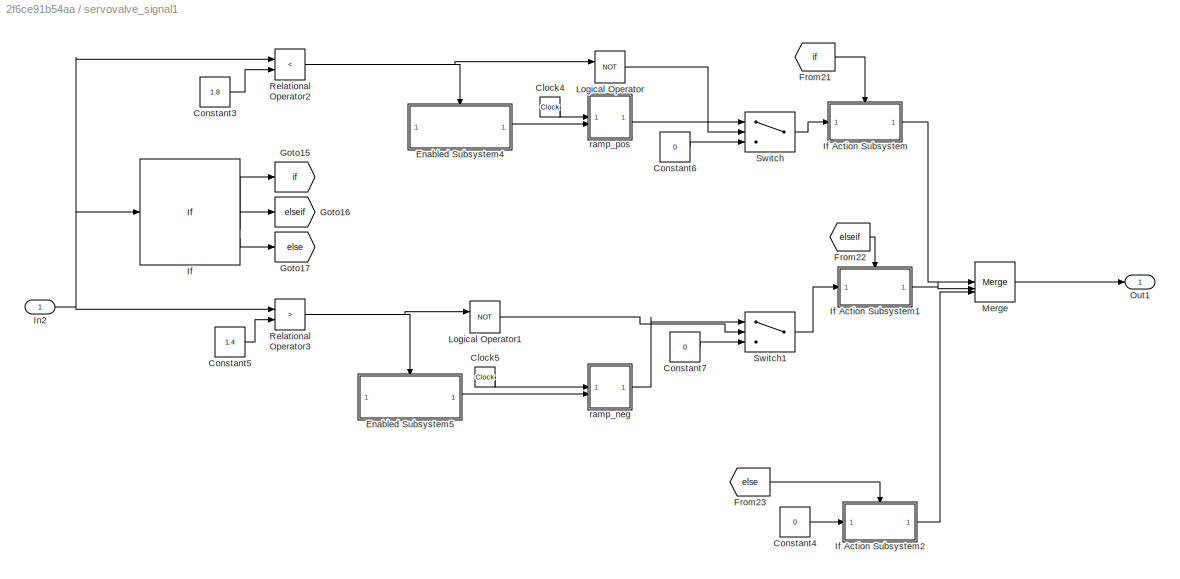
BLOCK [SubSystem] servovalve_signal1
  Commented = on
BLOCK [Clock] servovalve_signal1/Clock4
BLOCK [Clock] servovalve_signal1/Clock5
BLOCK [Constant] servovalve_signal1/Constant3
  Value = 1.8
BLOCK [Constant] servovalve_signal1/Constant4
  Value = 0
BLOCK [Constant] servovalve_signal1/Constant5
  Value = 1.4
BLOCK [Constant] servovalve_signal1/Constant6
  Value = 0
BLOCK [Constant] servovalve_signal1/Constant7
  Value = 0
BLOCK [SubSystem] servovalve_signal1/Enabled Subsystem4
  TreatAsAtomicUnit = on
BLOCK [Clock] servovalve_signal1/Enabled Subsystem4/Clock
BLOCK [EnablePort] servovalve_signal1/Enabled Subsystem4/Enable
BLOCK [Inport] servovalve_signal1/Enabled Subsystem4/In1
BLOCK [Outport] servovalve_signal1/Enabled Subsystem4/Out1
BLOCK [SubSystem] servovalve_signal1/Enabled Subsystem5
  TreatAsAtomicUnit = on
BLOCK [Clock] servovalve_signal1/Enabled Subsystem5/Clock
BLOCK [EnablePort] servovalve_signal1/Enabled Subsystem5/Enable
BLOCK [Inport] servovalve_signal1/Enabled Subsystem5/In1
BLOCK [Outport] servovalve_signal1/Enabled Subsystem5/Out1
BLOCK [From] servovalve_signal1/From21
  GotoTag = if
BLOCK [From] servovalve_signal1/From22
  GotoTag = elseif
BLOCK [From] servovalve_signal1/From23
  GotoTag = else
BLOCK [Goto] servovalve_signal1/Goto15
  GotoTag = if
BLOCK [Goto] servovalve_signal1/Goto16
  GotoTag = elseif
BLOCK [Goto] servovalve_signal1/Goto17
  GotoTag = else
BLOCK [If] servovalve_signal1/If
  ElseIfExpressions = u1 < 1.4
  IfExpression = u1 > 1.8
BLOCK [SubSystem] servovalve_signal1/If Action Subsystem
  TreatAsAtomicUnit = on
BLOCK [ActionPort] servovalve_signal1/If Action Subsystem/Action Port
BLOCK [Inport] servovalve_signal1/If Action Subsystem/In1
BLOCK [Outport] servovalve_signal1/If Action Subsystem/Out1
BLOCK [SubSystem] servovalve_signal1/If Action Subsystem1
  TreatAsAtomicUnit = on
BLOCK [ActionPort] servovalve_signal1/If Action Subsystem1/Action Port
BLOCK [Inport] servovalve_signal1/If Action Subsystem1/In1
BLOCK [Outport] servovalve_signal1/If Action Subsystem1/Out1
BLOCK [SubSystem] servovalve_signal1/If Action Subsystem2
  TreatAsAtomicUnit = on
BLOCK [ActionPort] servovalve_signal1/If Action Subsystem2/Action Port
BLOCK [Inport] servovalve_signal1/If Action Subsystem2/In1
BLOCK [Outport] servovalve_signal1/If Action Subsystem2/Out1
BLOCK [Inport] servovalve_signal1/In2
BLOCK [Logic] servovalve_signal1/Logical Operator
  AllPortsSameDT = off
  Operator = NOT
  OutDataTypeStr = boolean
BLOCK [Logic] servovalve_signal1/Logical Operator1
  AllPortsSameDT = off
  Operator = NOT
  OutDataTypeStr = boolean
BLOCK [Merge] servovalve_signal1/Merge
  Inputs = 3
BLOCK [Outport] servovalve_signal1/Out1
BLOCK [RelationalOperator] servovalve_signal1/Relational Operator2
  InputSameDT = off
  Operator = <
  OutDataTypeStr = boolean
  RndMeth = Simplest
BLOCK [RelationalOperator] servovalve_signal1/Relational Operator3
  InputSameDT = off
  Operator = >
  OutDataTypeStr = boolean
  RndMeth = Simplest
BLOCK [Switch] servovalve_signal1/Switch
  Criteria = u2 > Threshold
  InputSameDT = off
  SaturateOnIntegerOverflow = off
BLOCK [Switch] servovalve_signal1/Switch1
  Criteria = u2 > Threshold
  InputSameDT = off
  SaturateOnIntegerOverflow = off
BLOCK [SubSystem] servovalve_signal1/ramp_neg
BLOCK [Gain] servovalve_signal1/ramp_neg/Gain6
BLOCK [Inport] servovalve_signal1/ramp_neg/In1
BLOCK [Inport] servovalve_signal1/ramp_neg/In2
  Port = 2
BLOCK [Outport] servovalve_signal1/ramp_neg/Out1
BLOCK [Sum] servovalve_signal1/ramp_neg/Subtract5
  IconShape = rectangular
  Inputs = +-
BLOCK [SubSystem] servovalve_signal1/ramp_pos
BLOCK [Gain] servovalve_signal1/ramp_pos/Gain4
  Gain = -1
BLOCK [Inport] servovalve_signal1/ramp_pos/In1
BLOCK [Inport] servovalve_signal1/ramp_pos/In2
  Port = 2
BLOCK [Outport] servovalve_signal1/ramp_pos/Out1
BLOCK [Sum] servovalve_signal1/ramp_pos/Subtract4
  IconShape = rectangular
  Inputs = +-
ANNOTATION (root): promenih displacement i povećao sam angular velocity kako bi pumpa bila jača i brže pumpala pritisak u akumulatore
ANNOTATION (root): svetlo plava
ANNOTATION (root): tamno plava
ANNOTATION (root): zelena
ANNOTATION (root): Nije radilo nazalost, a fina je ideja. Mnogo se sporo izvrsava simulacija kada se radi preko mašine stanja. Povod je, bilo to što se zbuni p_acc_btw_1.4_and_1.8 kada je frekvencija servo_valve signala = 1hz. To se dešavalo, jer se Merge block "zbuni" kada se desi više promena signala u kratkom vremenskom intervalu.
ANNOTATION (root): Pokusao sam da napravim sledeci mehanizam. Da se napumpa akumulator 1 do određenog pritiska, pa da se zatim pritisak iz te boce iskoristi za pravljenje većeg pritiska na akumulatoru 2. Trebalo bi još da se poradi na toj ideji jer nije dovoljno stabilno.
ANNOTATION (root): Povećavao sam pragove za pritisak ovde i kod prelivnih ventila, jer sam primetio da to čini PID-u da lakše isprati željene promene položaja kod klipa cilindra.
ANNOTATION (root): Pojačao sam oba otpora 10 (bilo je 100) puta kako bi se sistem ustabilio
ANNOTATION (root): narandžasta
ANNOTATION (root): žuta
ANNOTATION (root): ljubičasta
LINE Constant3:1 -> Goto18:1
LINE Constant4:1 -> Goto19:1
LINE Constant5:1 -> Sum3:1
LINE Constant6:1 -> Mux5:3
LINE From10:1 -> Simulink-PS Converter2:1
LINE From11:1 -> Gain4:1
LINE From12:1 -> Mux1:5
LINE From13:1 -> Mux:5
LINE From14:1 -> Mux1:6
LINE From15:1 -> Mux:6
LINE From16:1 -> Transport Delay4:1
LINE From17:1 -> Mux2:1
LINE From18:1 -> Mux3:3
LINE From19:1 -> Mux2:3
LINE From1:1 -> Mux:4
LINE From20:1 -> Mux2:4
LINE From21:1 -> Mux3:1
LINE From22:1 -> p_acc_btw_1.4_and_1.8:1
LINE From23:1 -> Mux3:2
LINE From24:1 -> Transport Delay1:1
LINE From25:1 -> Transport Delay2:1
LINE From26:1 -> servovalve_signal1:1
LINE From27:1 -> Simulink-PS Converter3:1
LINE From28:1 -> Simulink-PS Converter4:1
LINE From29:1 -> Transport Delay5:1
LINE From2:1 -> Mux:3
LINE From30:1 -> Simulink-PS Converter1:1
LINE From31:1 -> Mux5:1
LINE From32:1 -> Mux5:2
LINE From33:1 -> Mux4:3
LINE From34:1 -> Mux4:4
LINE From35:1 -> Mux4:5
LINE From37:1 -> Mux5:4
LINE From3:1 -> Mux4:1
LINE From4:1 -> Mux2:2
LINE From5:1 -> Mux1:3
LINE From6:1 -> Gain3:1
LINE From7:1 -> Gain1:1
LINE From8:1 -> Mux4:2
LINE From9:1 -> Mux1:2
LINE From:1 -> Mux:2
LINE Gain1:1 -> Mux:1
LINE Gain3:1 -> Mux1:1
LINE Gain4:1 -> Mux1:4
LINE Mux1:1 -> Scope1:1
LINE Mux2:1 -> Scope 3:1
LINE Mux3:1 -> Scope 5:1
LINE Mux4:1 -> Scope 6:1
LINE Mux5:1 -> Scope 4:1
LINE Mux:1 -> Scope 2:1
LINE PID Controller1:1 -> Goto6:1
LINE PID Controller:1 -> Goto5:1
LINE PS-Simulink Converter:1 -> Goto2:1
LINE Q_b/Gain5:1 -> Q_b/Q_v:1
LINE Q_b/PS-Simulink Converter3:1 -> Q_b/Gain5:1
LINE Q_b:1 -> Goto11:1
LINE Q_pmp/Gain5:1 -> Q_pmp/Q_v:1
LINE Q_pmp/PS-Simulink Converter3:1 -> Q_pmp/Gain5:1
LINE Q_pmp:1 -> Goto4:1
LINE Qacc1/Gain5:1 -> Qacc1/Q_v:1
LINE Qacc1/PS-Simulink Converter3:1 -> Qacc1/Gain5:1
LINE Qacc1:1 -> Goto9:1
LINE Qbt/Gain5:1 -> Qbt/Q_v:1
LINE Qbt/PS-Simulink Converter3:1 -> Qbt/Gain5:1
LINE Qbt:1 -> Goto14:1
LINE Qp/Gain5:1 -> Qp/Q_v:1
LINE Qp/PS-Simulink Converter3:1 -> Qp/Gain5:1
LINE Qp:1 -> Goto:1
LINE Qpservo/Gain5:1 -> Qpservo/Q_v:1
LINE Qpservo/PS-Simulink Converter3:1 -> Qpservo/Gain5:1
LINE Qpservo:1 -> Goto13:1
LINE Relay2:1 -> Goto16:1
LINE Relay:1 -> Goto17:1
NET Repeating Sequence:1 -> Goto7:1, Sum2:1
LINE Sum2:1 -> PID Controller:1
LINE Sum3:1 -> PID Controller1:1
LINE Transport Delay1:1 -> Relay2:1
LINE Transport Delay2:1 -> Relay:1
LINE Transport Delay3:1 -> Chart2:1
LINE Transport Delay4:1 -> Sum2:2
LINE Transport Delay5:1 -> Sum3:2
LINE p_acc1/Gain:1 -> p_acc1/bar:1
LINE p_acc1/PS-Simulink Converter1:1 -> p_acc1/Gain:1
LINE p_acc1:1 -> Goto3:1
LINE p_acc2/Gain:1 -> p_acc2/bar:1
LINE p_acc2/PS-Simulink Converter1:1 -> p_acc2/Gain:1
LINE p_acc2:1 -> Goto12:1
LINE p_acc_btw_1.4_and_1.8/Constant1:1 -> p_acc_btw_1.4_and_1.8/Mux2:1
LINE p_acc_btw_1.4_and_1.8/Constant2:1 -> p_acc_btw_1.4_and_1.8/Mux2:2
LINE p_acc_btw_1.4_and_1.8/Constant3:1 -> p_acc_btw_1.4_and_1.8/Mux3:1
LINE p_acc_btw_1.4_and_1.8/Constant4:1 -> p_acc_btw_1.4_and_1.8/Mux3:2
LINE p_acc_btw_1.4_and_1.8/Demux:1 -> p_acc_btw_1.4_and_1.8/valve pump:1
LINE p_acc_btw_1.4_and_1.8/Demux:2 -> p_acc_btw_1.4_and_1.8/valve accumulator:1
LINE p_acc_btw_1.4_and_1.8/From12:1 -> p_acc_btw_1.4_and_1.8/If Action Subsystem:ifaction
LINE p_acc_btw_1.4_and_1.8/From13:1 -> p_acc_btw_1.4_and_1.8/If Action Subsystem2:ifaction
LINE p_acc_btw_1.4_and_1.8/From8:1 -> p_acc_btw_1.4_and_1.8/If Action Subsystem1:ifaction
LINE p_acc_btw_1.4_and_1.8/If Action Subsystem/In1:1 -> p_acc_btw_1.4_and_1.8/If Action Subsystem/Out1:1
LINE p_acc_btw_1.4_and_1.8/If Action Subsystem1/In1:1 -> p_acc_btw_1.4_and_1.8/If Action Subsystem1/Out1:1
LINE p_acc_btw_1.4_and_1.8/If Action Subsystem1:1 -> p_acc_btw_1.4_and_1.8/Merge:1
LINE p_acc_btw_1.4_and_1.8/If Action Subsystem2/In1:1 -> p_acc_btw_1.4_and_1.8/If Action Subsystem2/Out1:1
LINE p_acc_btw_1.4_and_1.8/If Action Subsystem2:1 -> p_acc_btw_1.4_and_1.8/Merge:3
LINE p_acc_btw_1.4_and_1.8/If Action Subsystem:1 -> p_acc_btw_1.4_and_1.8/Merge:2
LINE p_acc_btw_1.4_and_1.8/If:1 -> p_acc_btw_1.4_and_1.8/Goto7:1
LINE p_acc_btw_1.4_and_1.8/If:2 -> p_acc_btw_1.4_and_1.8/Goto8:1
LINE p_acc_btw_1.4_and_1.8/If:3 -> p_acc_btw_1.4_and_1.8/Goto9:1
LINE p_acc_btw_1.4_and_1.8/In1:1 -> p_acc_btw_1.4_and_1.8/Transport Delay:1
NET p_acc_btw_1.4_and_1.8/Merge:1 -> p_acc_btw_1.4_and_1.8/Demux:1, p_acc_btw_1.4_and_1.8/Transport Delay1:1
LINE p_acc_btw_1.4_and_1.8/Mux2:1 -> p_acc_btw_1.4_and_1.8/If Action Subsystem1:1
LINE p_acc_btw_1.4_and_1.8/Mux3:1 -> p_acc_btw_1.4_and_1.8/If Action Subsystem:1
LINE p_acc_btw_1.4_and_1.8/Transport Delay1:1 -> p_acc_btw_1.4_and_1.8/If Action Subsystem2:1
LINE p_acc_btw_1.4_and_1.8/Transport Delay:1 -> p_acc_btw_1.4_and_1.8/If:1
LINE p_acc_btw_1.4_and_1.8:1 -> Goto8:1
LINE p_acc_btw_1.4_and_1.8:2 -> Goto10:1
LINE p_pmp/Gain:1 -> p_pmp/bar:1
LINE p_pmp/PS-Simulink Converter1:1 -> p_pmp/Gain:1
LINE p_pmp:1 -> Goto1:1
LINE servovalve_signal1/Clock4:1 -> servovalve_signal1/ramp_pos:1
LINE servovalve_signal1/Clock5:1 -> servovalve_signal1/ramp_neg:1
LINE servovalve_signal1/Constant3:1 -> servovalve_signal1/Relational Operator2:2
LINE servovalve_signal1/Constant4:1 -> servovalve_signal1/If Action Subsystem2:1
LINE servovalve_signal1/Constant5:1 -> servovalve_signal1/Relational Operator3:2
LINE servovalve_signal1/Constant6:1 -> servovalve_signal1/Switch:3
LINE servovalve_signal1/Constant7:1 -> servovalve_signal1/Switch1:3
LINE servovalve_signal1/Enabled Subsystem4/Clock:1 -> servovalve_signal1/Enabled Subsystem4/Out1:1
LINE servovalve_signal1/Enabled Subsystem4:1 -> servovalve_signal1/ramp_pos:2
LINE servovalve_signal1/Enabled Subsystem5/Clock:1 -> servovalve_signal1/Enabled Subsystem5/Out1:1
LINE servovalve_signal1/Enabled Subsystem5:1 -> servovalve_signal1/ramp_neg:2
LINE servovalve_signal1/From21:1 -> servovalve_signal1/If Action Subsystem:ifaction
LINE servovalve_signal1/From22:1 -> servovalve_signal1/If Action Subsystem1:ifaction
LINE servovalve_signal1/From23:1 -> servovalve_signal1/If Action Subsystem2:ifaction
LINE servovalve_signal1/If Action Subsystem/In1:1 -> servovalve_signal1/If Action Subsystem/Out1:1
LINE servovalve_signal1/If Action Subsystem1/In1:1 -> servovalve_signal1/If Action Subsystem1/Out1:1
LINE servovalve_signal1/If Action Subsystem1:1 -> servovalve_signal1/Merge:2
LINE servovalve_signal1/If Action Subsystem2/In1:1 -> servovalve_signal1/If Action Subsystem2/Out1:1
LINE servovalve_signal1/If Action Subsystem2:1 -> servovalve_signal1/Merge:3
LINE servovalve_signal1/If Action Subsystem:1 -> servovalve_signal1/Merge:1
LINE servovalve_signal1/If:1 -> servovalve_signal1/Goto15:1
LINE servovalve_signal1/If:2 -> servovalve_signal1/Goto16:1
LINE servovalve_signal1/If:3 -> servovalve_signal1/Goto17:1
NET servovalve_signal1/In2:1 -> servovalve_signal1/If:1, servovalve_signal1/Relational Operator2:1, servovalve_signal1/Relational Operator3:1
LINE servovalve_signal1/Logical Operator1:1 -> servovalve_signal1/Switch1:2
LINE servovalve_signal1/Logical Operator:1 -> servovalve_signal1/Switch:2
LINE servovalve_signal1/Merge:1 -> servovalve_signal1/Out1:1
NET servovalve_signal1/Relational Operator2:1 -> servovalve_signal1/Enabled Subsystem4:enable, servovalve_signal1/Logical Operator:1
NET servovalve_signal1/Relational Operator3:1 -> servovalve_signal1/Enabled Subsystem5:enable, servovalve_signal1/Logical Operator1:1
LINE servovalve_signal1/Switch1:1 -> servovalve_signal1/If Action Subsystem1:1
LINE servovalve_signal1/Switch:1 -> servovalve_signal1/If Action Subsystem:1
LINE servovalve_signal1/ramp_neg/Gain6:1 -> servovalve_signal1/ramp_neg/Out1:1
LINE servovalve_signal1/ramp_neg/In1:1 -> servovalve_signal1/ramp_neg/Subtract5:1
LINE servovalve_signal1/ramp_neg/In2:1 -> servovalve_signal1/ramp_neg/Subtract5:2
LINE servovalve_signal1/ramp_neg/Subtract5:1 -> servovalve_signal1/ramp_neg/Gain6:1
LINE servovalve_signal1/ramp_neg:1 -> servovalve_signal1/Switch1:1
LINE servovalve_signal1/ramp_pos/Gain4:1 -> servovalve_signal1/ramp_pos/Out1:1
LINE servovalve_signal1/ramp_pos/In1:1 -> servovalve_signal1/ramp_pos/Subtract4:1
LINE servovalve_signal1/ramp_pos/In2:1 -> servovalve_signal1/ramp_pos/Subtract4:2
LINE servovalve_signal1/ramp_pos/Subtract4:1 -> servovalve_signal1/ramp_pos/Gain4:1
LINE servovalve_signal1/ramp_pos:1 -> servovalve_signal1/Switch:1
LINE servovalve_signal1:1 -> Goto20:1
PNET net1: 3-Way Directional Valve (TL)1:LConn1 -- Pressure Relief Valve (TL)1:LConn1 -- Qacc1:RConn1
PLINE 3-Way Directional Valve (TL)1:RConn1 -- Simulink-PS Converter3:RConn1
PNET net2: 3-Way Directional Valve (TL)1:RConn2 -- Interface (TL-IL)2:LConn1 -- Q_pmp:RConn1 -- p_pmp:LConn1
PNET net3: 3-Way Directional Valve (TL)1:RConn3 -- Pressure Relief Valve (TL)1:RConn1 -- Reservoir (TL)2:LConn1
PNET net4: 3-Way Directional Valve (TL):LConn1 -- Fixed-Displacement Motor (TL):LConn2 -- Pressure Relief Valve (TL):LConn1 -- Solver Configuration1:RConn1 -- Thermal Liquid Settings (TL):RConn1
PLINE 3-Way Directional Valve (TL):RConn1 -- Simulink-PS Converter2:RConn1
PLINE 3-Way Directional Valve (TL):RConn2 -- Check Valve (TL):LConn1
PLINE 3-Way Directional Valve (TL):RConn3 -- Reservoir (TL)1:LConn1
PLINE Cap (TL):LConn1 -- Interface (TL-IL)4:LConn1
PLINE Check Valve (TL):RConn1 -- Q_pmp:LConn1
PNET net5: Double-Acting Actuator (TL):LConn1 -- Double-Acting Actuator (TL):RConn2 -- Gas-Charged Accumulator (TL)1:RConn2 -- Perfect Insulator1:LConn1
PLINE Double-Acting Actuator (TL):LConn2 -- Mechanical Translational Reference1:LConn1
PNET net6: Double-Acting Actuator (TL):LConn3 -- Gas-Charged Accumulator (TL)1:RConn1 -- p_acc2:LConn1
PLINE Double-Acting Actuator (TL):RConn1 -- PS-Simulink Converter:LConn1
PNET net7: Double-Acting Actuator (TL):RConn3 -- Translational Damper:LConn1 -- Translational Spring:LConn1
PLINE Double-Acting Actuator (TL):RConn4 -- Interface (TL-IL)3:LConn1
PNET net8: Fixed-Displacement Motor (TL):LConn1 -- Interface (TL-IL)1:LConn1 -- Qp:RConn1 -- Reservoir (TL):LConn1
PNET net9: Fixed-Displacement Motor (TL):RConn1 -- Ideal Angular Velocity Source1:LConn1 -- Inertia:LConn1
PLINE Fixed-Displacement Motor (TL):RConn2 -- Mechanical Rotational Reference2:LConn1
PLINE Force Source1:LConn1 -- Servovalve2:RConn1
PLINE Force Source1:RConn1 -- Simulink-PS Converter4:RConn1
PLINE Force Source1:RConn2 -- MTRef Spool Force1:LConn1
PNET net10: Gas-Charged Accumulator (TL):RConn1 -- Qacc1:LConn1 -- p_acc1:LConn1
PLINE Gas-Charged Accumulator (TL):RConn2 -- Perfect Insulator:LConn1
PLINE Ideal Angular Velocity Source1:RConn1 -- Simulink-PS Converter1:RConn1
PLINE Ideal Angular Velocity Source1:RConn2 -- Mechanical Rotational Reference1:LConn1
PLINE Interface (TL-IL)1:RConn1 -- Qbt:RConn1
PLINE Interface (TL-IL)2:RConn1 -- Qpservo:LConn1
PLINE Interface (TL-IL)3:RConn1 -- Q_b:RConn1
PLINE Interface (TL-IL)4:RConn1 -- Servovalve2:LConn1
PNET net11: Mechanical Translational Reference:LConn1 -- Translational Damper:RConn1 -- Translational Spring:RConn1
PLINE Pressure Relief Valve (TL):RConn1 -- Qp:LConn1
PLINE Q_b/A:RConn1 -- Q_b/Flow Rate Sensor (IL):LConn1
PLINE Q_b/B:RConn1 -- Q_b/Flow Rate Sensor (IL):RConn1
PLINE Q_b/Flow Rate Sensor (IL):RConn3 -- Q_b/PS-Simulink Converter3:LConn1
PLINE Q_b:LConn1 -- Servovalve2:LConn2
PLINE Q_pmp/A:RConn1 -- Q_pmp/Flow Rate Sensor (TL)3:LConn1
PLINE Q_pmp/B:RConn1 -- Q_pmp/Flow Rate Sensor (TL)3:RConn1
PLINE Q_pmp/Flow Rate Sensor (TL)3:RConn3 -- Q_pmp/PS-Simulink Converter3:LConn1
PLINE Qacc1/A:RConn1 -- Qacc1/Flow Rate Sensor (TL)3:LConn1
PLINE Qacc1/B:RConn1 -- Qacc1/Flow Rate Sensor (TL)3:RConn1
PLINE Qacc1/Flow Rate Sensor (TL)3:RConn3 -- Qacc1/PS-Simulink Converter3:LConn1
PLINE Qbt/A:RConn1 -- Qbt/Flow Rate Sensor (IL):LConn1
PLINE Qbt/B:RConn1 -- Qbt/Flow Rate Sensor (IL):RConn1
PLINE Qbt/Flow Rate Sensor (IL):RConn3 -- Qbt/PS-Simulink Converter3:LConn1
PLINE Qbt:LConn1 -- Servovalve2:RConn3
PLINE Qp/A:RConn1 -- Qp/Flow Rate Sensor (TL)3:LConn1
PLINE Qp/B:RConn1 -- Qp/Flow Rate Sensor (TL)3:RConn1
PLINE Qp/Flow Rate Sensor (TL)3:RConn3 -- Qp/PS-Simulink Converter3:LConn1
PLINE Qpservo/A:RConn1 -- Qpservo/Flow Rate Sensor (IL):LConn1
PLINE Qpservo/B:RConn1 -- Qpservo/Flow Rate Sensor (IL):RConn1
PLINE Qpservo/Flow Rate Sensor (IL):RConn3 -- Qpservo/PS-Simulink Converter3:LConn1
PLINE Qpservo:RConn1 -- Servovalve2:RConn2
PLINE Servovalve2/A:RConn1 -- Servovalve2/Main Valve:RConn1
PNET net12: Servovalve2/Armature Damper:LConn1 -- Servovalve2/Armature Hard Stop:LConn1 -- Servovalve2/Armature Mass:LConn1 -- Servovalve2/Armature Position:LConn1 -- Servovalve2/F:RConn1 -- Servovalve2/Flapper Damper:LConn1 -- Servovalve2/Flapper Spring:LConn1
PNET net13: Servovalve2/Armature Damper:RConn1 -- Servovalve2/Armature Hard Stop:RConn1 -- Servovalve2/Armature Position:RConn1 -- Servovalve2/MTRef Armature:LConn1
PNET net14: Servovalve2/Armature Position:RConn3 -- Servovalve2/Nozzle A:LConn1 -- Servovalve2/Nozzle B:LConn1
PLINE Servovalve2/B:RConn1 -- Servovalve2/Main Valve:RConn3
PLINE Servovalve2/Fixed Orifice A/A:RConn1 -- Servovalve2/Fixed Orifice A/Fixed Orifice A:LConn1
PLINE Servovalve2/Fixed Orifice A/B:RConn1 -- Servovalve2/Fixed Orifice A/Fixed Orifice A:RConn1
PNET net15: Servovalve2/Fixed Orifice A:LConn1 -- Servovalve2/Fixed Orifice B:LConn1 -- Servovalve2/Main Valve:RConn2 -- Servovalve2/P:RConn1
PNET net16: Servovalve2/Fixed Orifice A:RConn1 -- Servovalve2/Main Valve:LConn1 -- Servovalve2/Nozzle A:LConn2
PLINE Servovalve2/Fixed Orifice B/A:RConn1 -- Servovalve2/Fixed Orifice B/Fixed Orifice B:LConn1
PLINE Servovalve2/Fixed Orifice B/B:RConn1 -- Servovalve2/Fixed Orifice B/Fixed Orifice B:RConn1
PNET net17: Servovalve2/Fixed Orifice B:RConn1 -- Servovalve2/Main Valve:LConn3 -- Servovalve2/Nozzle B:LConn2
PNET net18: Servovalve2/Flapper Damper:RConn1 -- Servovalve2/Flapper Spring:RConn1 -- Servovalve2/Main Valve:LConn2
PNET net19: Servovalve2/Main Valve/A:RConn1 -- Servovalve2/Main Valve/Orifice AT:LConn2 -- Servovalve2/Main Valve/Orifice PA:RConn1
PLINE Servovalve2/Main Valve/A_S:RConn1 -- Servovalve2/Main Valve/Spool Side A:LConn2
PNET net20: Servovalve2/Main Valve/B:RConn1 -- Servovalve2/Main Valve/Orifice BT:LConn2 -- Servovalve2/Main Valve/Orifice PB:RConn1
PLINE Servovalve2/Main Valve/B_S:RConn1 -- Servovalve2/Main Valve/Spool Side B:LConn2
PNET net21: Servovalve2/Main Valve/Flapper:RConn1 -- Servovalve2/Main Valve/Orifice AT:LConn1 -- Servovalve2/Main Valve/Orifice BT:LConn1 -- Servovalve2/Main Valve/Orifice PA:LConn1 -- Servovalve2/Main Valve/Orifice PB:LConn1 -- Servovalve2/Main Valve/Spool Damper:LConn1 -- Servovalve2/Main Valve/Spool Mass:LConn1 -- Servovalve2/Main Valve/Spool Side A:RConn1 -- Servovalve2/Main Valve/Spool Side B:RConn1
PNET net22: Servovalve2/Main Valve/MTRef Spool A:LConn1 -- Servovalve2/Main Valve/Spool Damper:RConn1 -- Servovalve2/Main Valve/Spool Side A:LConn1
PLINE Servovalve2/Main Valve/MTRef Spool B:LConn1 -- Servovalve2/Main Valve/Spool Side B:LConn1
PLINE Servovalve2/Main Valve/Orifice AT/A:RConn1 -- Servovalve2/Main Valve/Orifice AT/Orifice:LConn2
PLINE Servovalve2/Main Valve/Orifice AT/B:RConn1 -- Servovalve2/Main Valve/Orifice AT/Spool Orifice Hydraulic Force:RConn1
PNET net23: Servovalve2/Main Valve/Orifice AT/Hydraulic Force:LConn1 -- Servovalve2/Main Valve/Orifice AT/Motion Sensor:LConn1 -- Servovalve2/Main Valve/Orifice AT/S:RConn1
PLINE Servovalve2/Main Valve/Orifice AT/Hydraulic Force:RConn1 -- Servovalve2/Main Valve/Orifice AT/Spool Orifice Hydraulic Force:RConn2
PLINE Servovalve2/Main Valve/Orifice AT/Hydraulic Force:RConn2 -- Servovalve2/Main Valve/Orifice AT/MTRef Force:LConn1
PLINE Servovalve2/Main Valve/Orifice AT/MTRef Sensor:LConn1 -- Servovalve2/Main Valve/Orifice AT/Motion Sensor:RConn1
PNET net24: Servovalve2/Main Valve/Orifice AT/Motion Sensor:RConn3 -- Servovalve2/Main Valve/Orifice AT/Orifice:LConn1 -- Servovalve2/Main Valve/Orifice AT/Spool Orifice Hydraulic Force:LConn2
PLINE Servovalve2/Main Valve/Orifice AT/Orifice:RConn1 -- Servovalve2/Main Valve/Orifice AT/Spool Orifice Hydraulic Force:LConn1
PNET net25: Servovalve2/Main Valve/Orifice AT:RConn1 -- Servovalve2/Main Valve/Orifice BT:RConn1 -- Servovalve2/Main Valve/T:RConn1
PLINE Servovalve2/Main Valve/Orifice BT/A:RConn1 -- Servovalve2/Main Valve/Orifice BT/Orifice:LConn2
PLINE Servovalve2/Main Valve/Orifice BT/B:RConn1 -- Servovalve2/Main Valve/Orifice BT/Spool Orifice Hydraulic Force:RConn1
PNET net26: Servovalve2/Main Valve/Orifice BT/Hydraulic Force:LConn1 -- Servovalve2/Main Valve/Orifice BT/Motion Sensor:LConn1 -- Servovalve2/Main Valve/Orifice BT/S:RConn1
PLINE Servovalve2/Main Valve/Orifice BT/Hydraulic Force:RConn1 -- Servovalve2/Main Valve/Orifice BT/Spool Orifice Hydraulic Force:RConn2
PLINE Servovalve2/Main Valve/Orifice BT/Hydraulic Force:RConn2 -- Servovalve2/Main Valve/Orifice BT/MTRef Force:LConn1
PLINE Servovalve2/Main Valve/Orifice BT/MTRef Sensor:LConn1 -- Servovalve2/Main Valve/Orifice BT/Motion Sensor:RConn1
PNET net27: Servovalve2/Main Valve/Orifice BT/Motion Sensor:RConn3 -- Servovalve2/Main Valve/Orifice BT/Orifice:LConn1 -- Servovalve2/Main Valve/Orifice BT/Spool Orifice Hydraulic Force:LConn2
PLINE Servovalve2/Main Valve/Orifice BT/Orifice:RConn1 -- Servovalve2/Main Valve/Orifice BT/Spool Orifice Hydraulic Force:LConn1
PLINE Servovalve2/Main Valve/Orifice PA/A:RConn1 -- Servovalve2/Main Valve/Orifice PA/Orifice:LConn2
PLINE Servovalve2/Main Valve/Orifice PA/B:RConn1 -- Servovalve2/Main Valve/Orifice PA/Spool Orifice Hydraulic Force:RConn1
PNET net28: Servovalve2/Main Valve/Orifice PA/Hydraulic Force:LConn1 -- Servovalve2/Main Valve/Orifice PA/Motion Sensor:LConn1 -- Servovalve2/Main Valve/Orifice PA/S:RConn1
PLINE Servovalve2/Main Valve/Orifice PA/Hydraulic Force:RConn1 -- Servovalve2/Main Valve/Orifice PA/Spool Orifice Hydraulic Force:RConn2
PLINE Servovalve2/Main Valve/Orifice PA/Hydraulic Force:RConn2 -- Servovalve2/Main Valve/Orifice PA/MTRef Force:LConn1
PLINE Servovalve2/Main Valve/Orifice PA/MTRef Sensor:LConn1 -- Servovalve2/Main Valve/Orifice PA/Motion Sensor:RConn1
PNET net29: Servovalve2/Main Valve/Orifice PA/Motion Sensor:RConn3 -- Servovalve2/Main Valve/Orifice PA/Orifice:LConn1 -- Servovalve2/Main Valve/Orifice PA/Spool Orifice Hydraulic Force:LConn2
PLINE Servovalve2/Main Valve/Orifice PA/Orifice:RConn1 -- Servovalve2/Main Valve/Orifice PA/Spool Orifice Hydraulic Force:LConn1
PNET net30: Servovalve2/Main Valve/Orifice PA:LConn2 -- Servovalve2/Main Valve/Orifice PB:LConn2 -- Servovalve2/Main Valve/P:RConn1
PLINE Servovalve2/Main Valve/Orifice PB/A:RConn1 -- Servovalve2/Main Valve/Orifice PB/Orifice:LConn2
PLINE Servovalve2/Main Valve/Orifice PB/B:RConn1 -- Servovalve2/Main Valve/Orifice PB/Spool Orifice Hydraulic Force:RConn1
PNET net31: Servovalve2/Main Valve/Orifice PB/Hydraulic Force:LConn1 -- Servovalve2/Main Valve/Orifice PB/Motion Sensor:LConn1 -- Servovalve2/Main Valve/Orifice PB/S:RConn1
PLINE Servovalve2/Main Valve/Orifice PB/Hydraulic Force:RConn1 -- Servovalve2/Main Valve/Orifice PB/Spool Orifice Hydraulic Force:RConn2
PLINE Servovalve2/Main Valve/Orifice PB/Hydraulic Force:RConn2 -- Servovalve2/Main Valve/Orifice PB/MTRef Force:LConn1
PLINE Servovalve2/Main Valve/Orifice PB/MTRef Sensor:LConn1 -- Servovalve2/Main Valve/Orifice PB/Motion Sensor:RConn1
PNET net32: Servovalve2/Main Valve/Orifice PB/Motion Sensor:RConn3 -- Servovalve2/Main Valve/Orifice PB/Orifice:LConn1 -- Servovalve2/Main Valve/Orifice PB/Spool Orifice Hydraulic Force:LConn2
PLINE Servovalve2/Main Valve/Orifice PB/Orifice:RConn1 -- Servovalve2/Main Valve/Orifice PB/Spool Orifice Hydraulic Force:LConn1
PLINE Servovalve2/Main Valve/Spool Side A/A:RConn1 -- Servovalve2/Main Valve/Spool Side A/Spool Side A:LConn1
PLINE Servovalve2/Main Valve/Spool Side A/C:RConn1 -- Servovalve2/Main Valve/Spool Side A/Spool Side A:LConn2
PLINE Servovalve2/Main Valve/Spool Side A/R:RConn1 -- Servovalve2/Main Valve/Spool Side A/Spool Side A:RConn1
PLINE Servovalve2/Main Valve/Spool Side B/A:RConn1 -- Servovalve2/Main Valve/Spool Side B/Spool Side B:LConn1
PLINE Servovalve2/Main Valve/Spool Side B/C:RConn1 -- Servovalve2/Main Valve/Spool Side B/Spool Side B:LConn2
PLINE Servovalve2/Main Valve/Spool Side B/R:RConn1 -- Servovalve2/Main Valve/Spool Side B/Spool Side B:RConn1
PNET net33: Servovalve2/Main Valve:RConn4 -- Servovalve2/Nozzle A:RConn1 -- Servovalve2/Nozzle B:RConn1 -- Servovalve2/T:RConn1
PLINE Servovalve2/Nozzle A/A:RConn1 -- Servovalve2/Nozzle A/Nozzle A:LConn1
PLINE Servovalve2/Nozzle A/B:RConn1 -- Servovalve2/Nozzle A/Nozzle A:RConn1
PLINE Servovalve2/Nozzle A/Nozzle A:LConn2 -- Servovalve2/Nozzle A/S:RConn1
PLINE Servovalve2/Nozzle B/A:RConn1 -- Servovalve2/Nozzle B/Nozzle B:LConn1
PLINE Servovalve2/Nozzle B/B:RConn1 -- Servovalve2/Nozzle B/Nozzle B:RConn1
PLINE Servovalve2/Nozzle B/Nozzle B:LConn2 -- Servovalve2/Nozzle B/S:RConn1
PLINE p_acc1/A:RConn1 -- p_acc1/Pressure & Temperature Sensor (TL):LConn1
PLINE p_acc1/PS-Simulink Converter1:LConn1 -- p_acc1/Pressure & Temperature Sensor (TL):RConn1
PLINE p_acc2/A:RConn1 -- p_acc2/Pressure & Temperature Sensor (TL):LConn1
PLINE p_acc2/PS-Simulink Converter1:LConn1 -- p_acc2/Pressure & Temperature Sensor (TL):RConn1
PLINE p_pmp/A:RConn1 -- p_pmp/Pressure & Temperature Sensor (TL):LConn1
PLINE p_pmp/PS-Simulink Converter1:LConn1 -- p_pmp/Pressure & Temperature Sensor (TL):RConn1
note: NET lines group one-source signal fan-out (src -> all destinations, sorted); 1:1 wires keep LINE; PNET lines group multi-terminal physical nets as a canonical sorted terminal list (undirected conserving connections); 2-terminal nets keep the pairwise PLINE form
CHART Chart2 states=2 transitions=3
  STATE_LABEL 'pritisak_veci_od_1_5\nentry:\n y1 = 2;\n y2 = -1;\nduring:\n y1 = 2;\n y2 = -1'
  STATE_LABEL 'pritisak_manji_od_1_4\nentry:\n y1 = 2;\n y2 = 1;\nduring:\n y1 = 2;\n y2 = 1'
CHART  states=0 transitions=0
